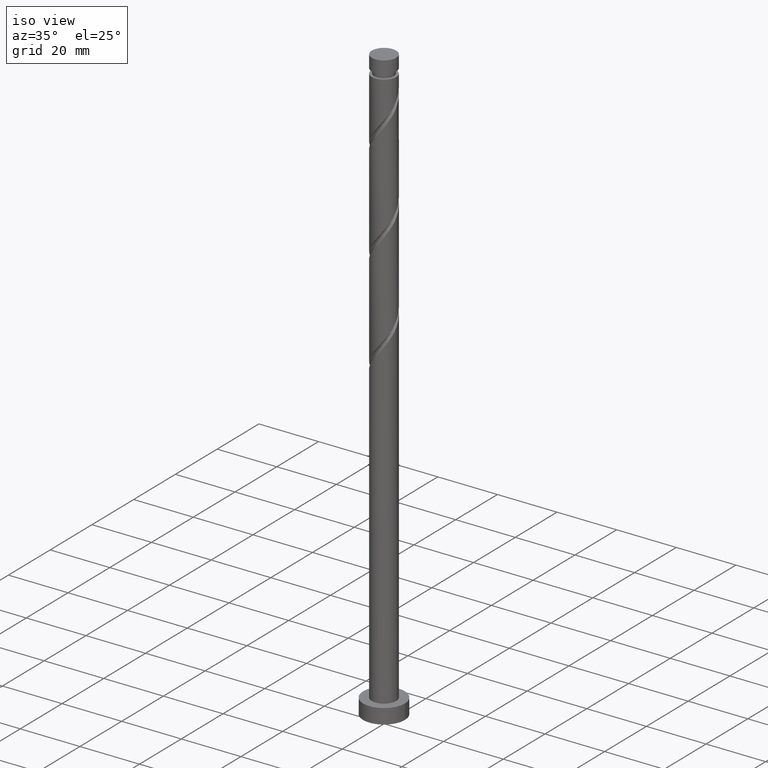
[diagram: clean part render]
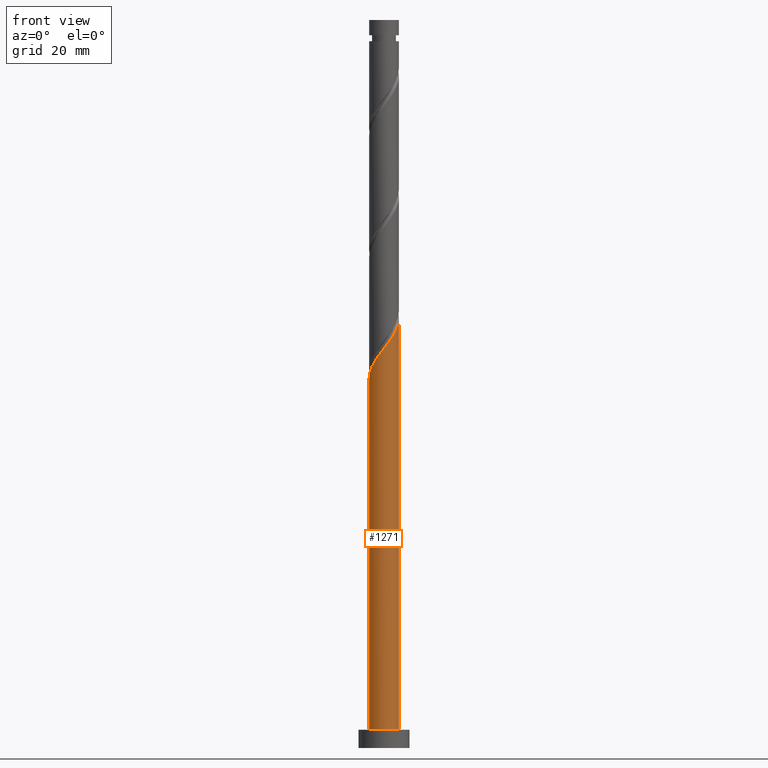
[diagram: tour spotlight — one face highlighted and labeled with its STEP entity id]
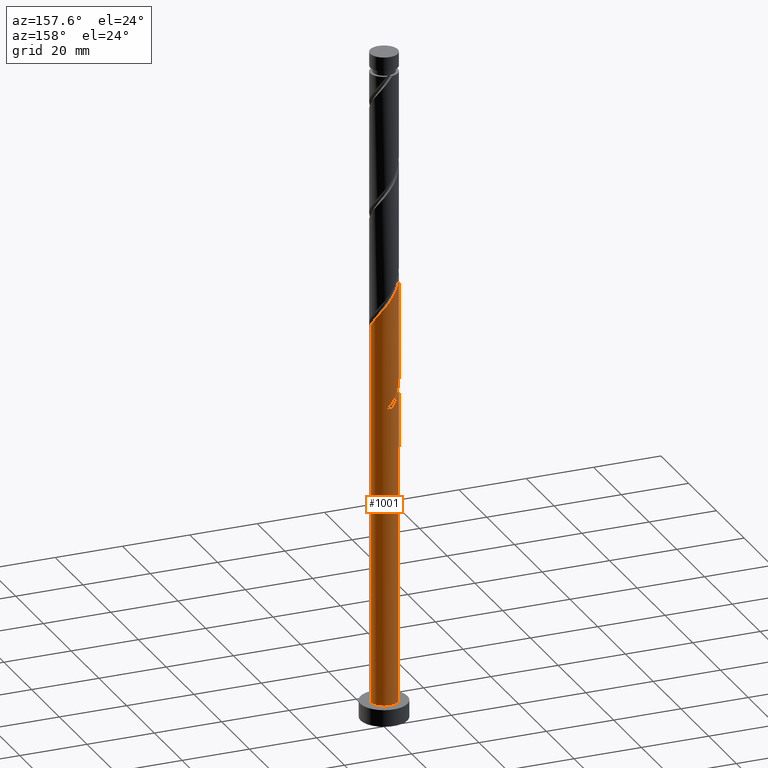
[diagram: tour spotlight — one face highlighted and labeled with its STEP entity id]
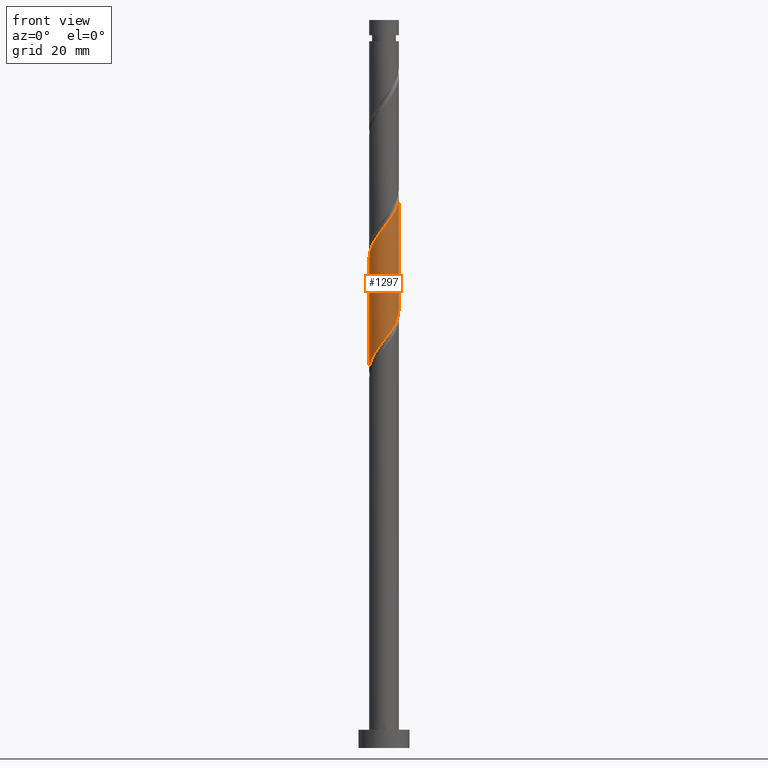
[diagram: tour spotlight — one face highlighted and labeled with its STEP entity id]
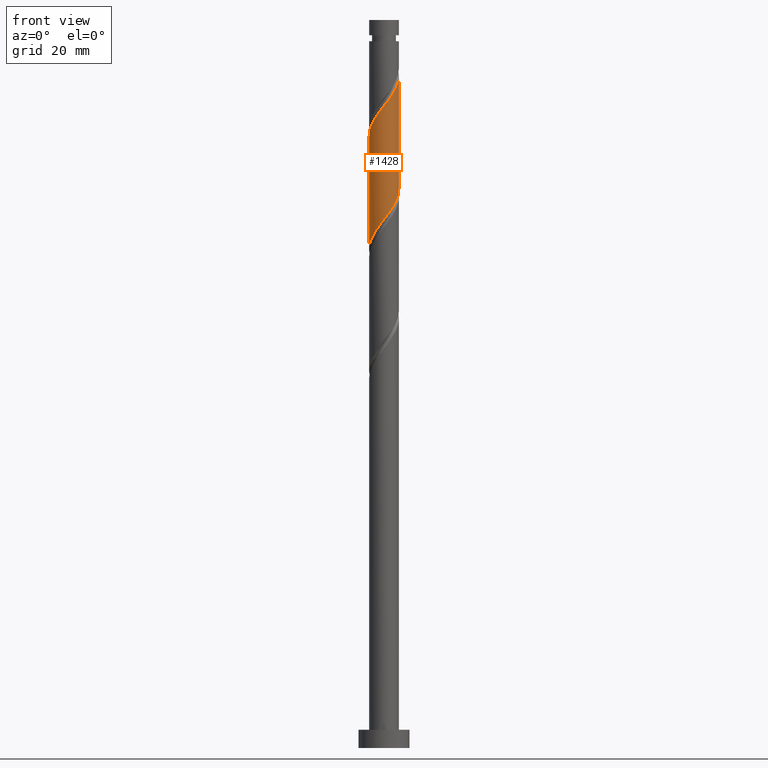
[diagram: tour spotlight — one face highlighted and labeled with its STEP entity id]
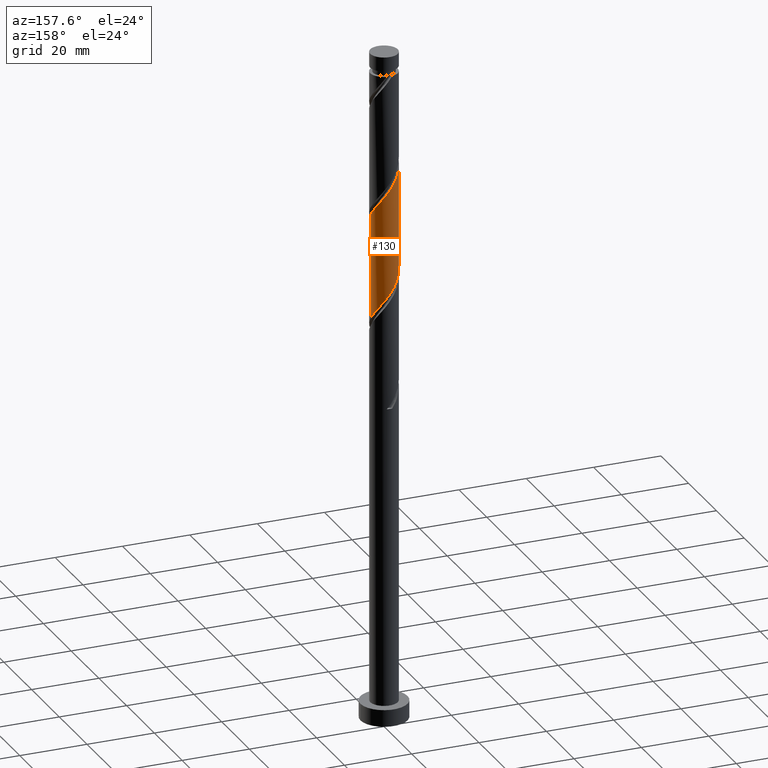
[diagram: tour spotlight — one face highlighted and labeled with its STEP entity id]
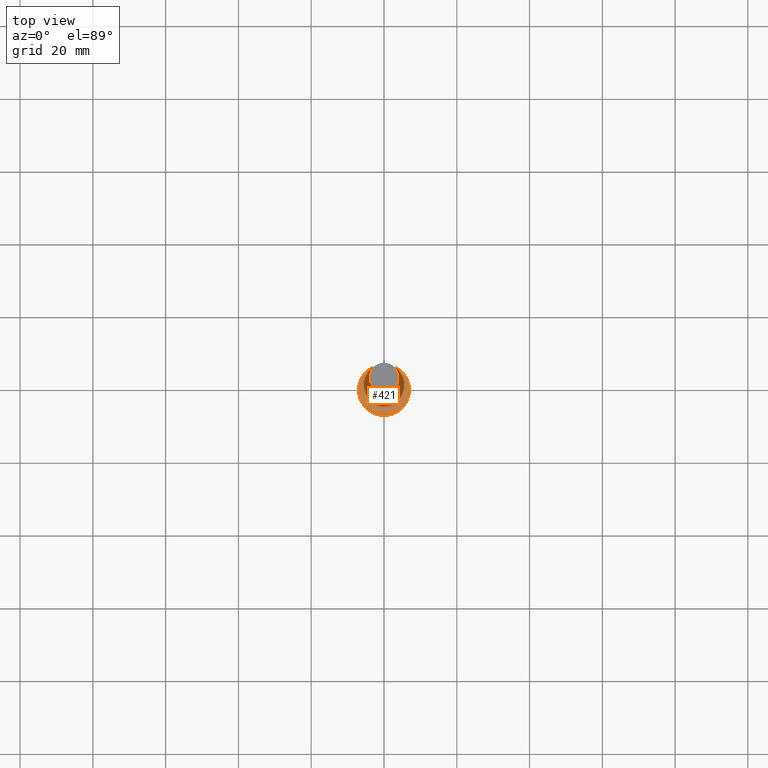
[diagram: tour spotlight — one face highlighted and labeled with its STEP entity id]
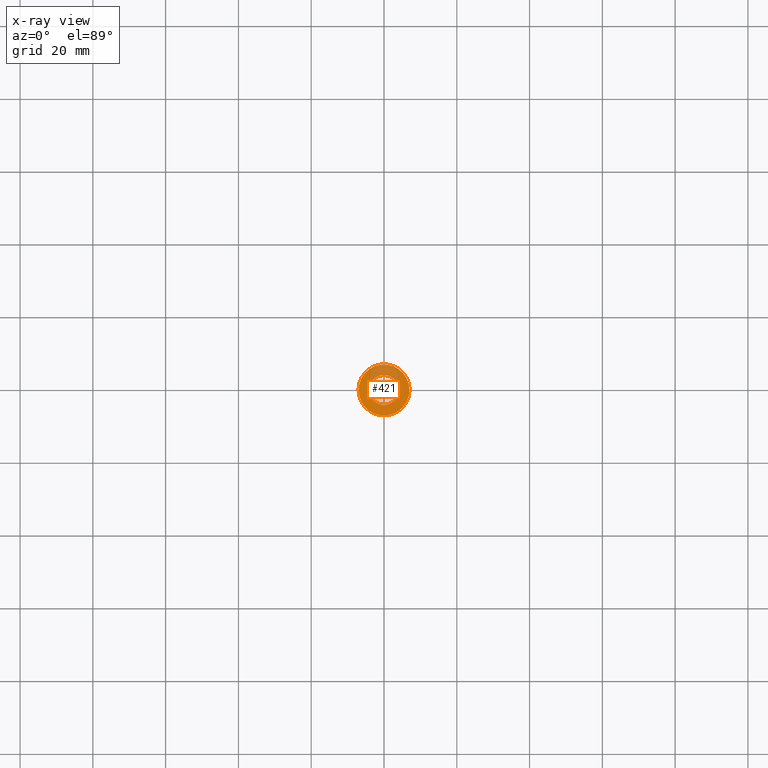
[diagram: x-ray of the same camera — body ghosted, this tour face saturated]
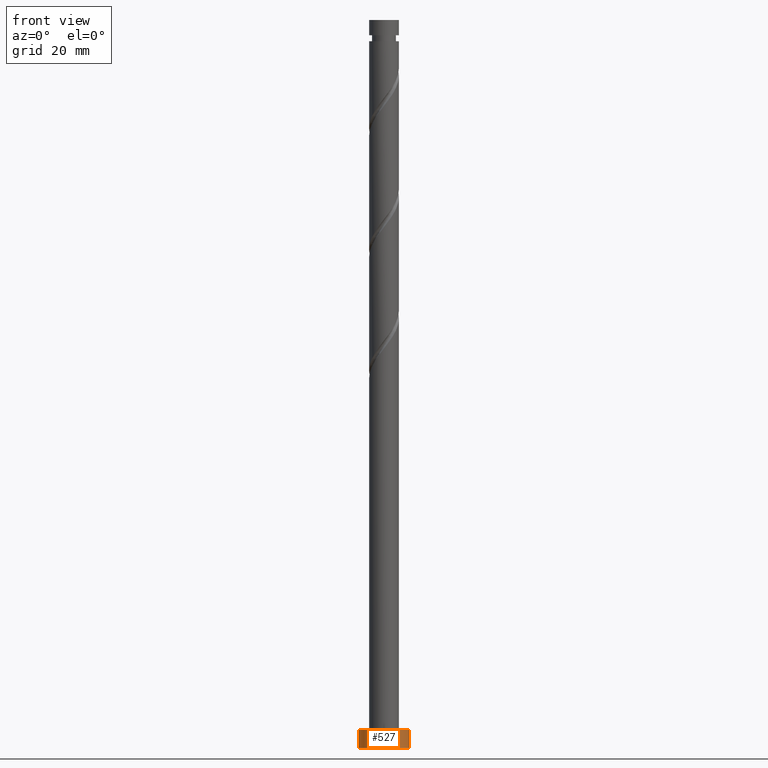
[diagram: tour spotlight — one face highlighted and labeled with its STEP entity id]
A machine part: a face-by-face anatomy tour. The part has 21 B-rep faces; the first image is the clean iso view, then the 7 largest visible faces are spotlighted one at a time (largest first), each with its STEP entity span.

Face 1 — front view, entity #1271. In plain terms, the highlighted cylindrical surface (edge-blend (fillet) strip) has radius 4.1 mm, axis along (-0, -0, -1).
Definition (entity closure, byte-faithful):
#46 = CARTESIAN_POINT ( 'NONE',  ( 1.828023854336181753, -3.669922177373511119, 112.2252327879894409 ) ) ;
#96 = CARTESIAN_POINT ( 'NONE',  ( -4.100000000000005862, -0.4120655042562741399, 101.9728702797464024 ) ) ;
#106 = VECTOR ( 'NONE', #817, 1000.000000000000000 ) ;
#111 = VERTEX_POINT ( 'NONE', #1447 ) ;
#167 = CARTESIAN_POINT ( 'NONE',  ( 4.092257762685451716, -0.2518459921076792174, 117.7807883435449980 ) ) ;
#175 = AXIS2_PLACEMENT_3D ( 'NONE', #1226, #408, #808 ) ;
#178 = CARTESIAN_POINT ( 'NONE',  ( -0.2518459921076771635, -4.092257762685452605, 109.4474550102116837 ) ) ;
#219 = CARTESIAN_POINT ( 'NONE',  ( -3.910586083446207173, -1.344869433733586028, 103.1974550102116694 ) ) ;
#237 = ORIENTED_EDGE ( 'NONE', *, *, #1057, .F. ) ;
#292 = CARTESIAN_POINT ( 'NONE',  ( 2.715581205524179698, -3.071745223192165586, 113.6141216768783266 ) ) ;
#342 = VERTEX_POINT ( 'NONE', #1412 ) ;
#355 = EDGE_LOOP ( 'NONE', ( #237, #795, #1749, #532 ) ) ;
#359 = CARTESIAN_POINT ( 'NONE',  ( -3.429258271300815064, -2.311178274938778809, 104.5863438991005836 ) ) ;
#408 = DIRECTION ( 'NONE',  ( 0.000000000000000000, 0.000000000000000000, 1.000000000000000000 ) ) ;
#416 = CARTESIAN_POINT ( 'NONE',  ( 4.099999999999999645, 5.021051876504147385E-16, 200.0000000000000000 ) ) ;
#434 = CARTESIAN_POINT ( 'NONE',  ( 2.311178274938777921, -3.429258271300815508, 112.9196772324338696 ) ) ;
#441 = CARTESIAN_POINT ( 'NONE',  ( -2.714232175083515664, -3.119984136109581030, 105.9752327879894693 ) ) ;
#444 = CARTESIAN_POINT ( 'NONE',  ( 0.000000000000000000, 0.000000000000000000, 200.0000000000000000 ) ) ;
#532 = ORIENTED_EDGE ( 'NONE', *, *, #1532, .T. ) ;
#537 = VECTOR ( 'NONE', #779, 1000.000000000000000 ) ;
#539 = AXIS2_PLACEMENT_3D ( 'NONE', #444, #936, #1370 ) ;
#549 = EDGE_CURVE ( 'NONE', #342, #111, #642, .T. ) ;
#554 = CARTESIAN_POINT ( 'NONE',  ( 4.059101608817101692, -0.7906019473366266981, 117.0863438991005694 ) ) ;
#642 = LINE ( 'NONE', #1609, #537 ) ;
#647 = CYLINDRICAL_SURFACE ( 'NONE', #539, 4.099999999999999645 ) ;
#657 = CIRCLE ( 'NONE', #175, 4.099999999999999645 ) ;
#680 = CARTESIAN_POINT ( 'NONE',  ( 4.100000000000004086, -0.1260420017964657136, 117.9429468891956390 ) ) ;
#689 = EDGE_CURVE ( 'NONE', #342, #951, #1051, .T. ) ;
#701 = CARTESIAN_POINT ( 'NONE',  ( 4.100000000000004974, -5.981513777448022401E-17, 118.1061105772238022 ) ) ;
#745 = CARTESIAN_POINT ( 'NONE',  ( 4.099999999999999645, 5.021051876504147385E-16, 5.000000000000000000 ) ) ;
#758 = CARTESIAN_POINT ( 'NONE',  ( -3.669922177373509786, -1.828023854336183085, 103.8918994546560981 ) ) ;
#779 = DIRECTION ( 'NONE',  ( -0.000000000000000000, -0.000000000000000000, -1.000000000000000000 ) ) ;
#795 = ORIENTED_EDGE ( 'NONE', *, *, #689, .F. ) ;
#799 = LINE ( 'NONE', #416, #106 ) ;
#808 = DIRECTION ( 'NONE',  ( 1.000000000000000000, 0.000000000000000000, 0.000000000000000000 ) ) ;
#817 = DIRECTION ( 'NONE',  ( -0.000000000000000000, -0.000000000000000000, -1.000000000000000000 ) ) ;
#831 = CARTESIAN_POINT ( 'NONE',  ( 3.418076185265833011, -2.264233908349270852, 115.0030105657672266 ) ) ;
#909 = FACE_OUTER_BOUND ( 'NONE', #355, .T. ) ;
#936 = DIRECTION ( 'NONE',  ( -0.000000000000000000, -0.000000000000000000, -1.000000000000000000 ) ) ;
#951 = VERTEX_POINT ( 'NONE', #1192 ) ;
#980 = CARTESIAN_POINT ( 'NONE',  ( 0.2869099631212708723, -4.125413916553802629, 110.1418994546560981 ) ) ;
#1051 =( BOUNDED_CURVE ( )  B_SPLINE_CURVE ( 2, ( #1572, #96, #1439, #219, #758, #359, #1325, #441, #1113, #1368, #1250, #1681, #178, #980, #1519, #1539, #46, #434, #292, #1355, #831, #1504, #1375, #554, #167, #680, #701 ),
 .UNSPECIFIED., .F., .T. ) 
 B_SPLINE_CURVE_WITH_KNOTS ( ( 3, 2, 2, 2, 2, 2, 2, 2, 2, 2, 2, 2, 2, 3 ),
 ( 0.05453176698144625995, 0.06250000000000000000, 0.07291666666666662966, 0.08333333333333337034, 0.09375000000000000000, 0.1041666666666666297, 0.1145833333333333703, 0.1250000000000000000, 0.1354166666666666297, 0.1458333333333333703, 0.1562500000000000000, 0.1666666666666666297, 0.1770833333333333703, 0.1795317669814462946 ),
 .UNSPECIFIED. ) 
 CURVE ( )  GEOMETRIC_REPRESENTATION_ITEM ( )  RATIONAL_B_SPLINE_CURVE ( ( 0.9062941362546463875, 0.9031415850403505807, 0.9090909090909261581, 0.9013135103398444148, 0.9090909090909261581, 0.9013135103398444148, 0.9090909090909261581, 0.9013135103398444148, 0.9090909090909261581, 0.9013135103398444148, 0.9090909090909261581, 0.9013135103398444148, 0.9090909090909261581, 0.9013135103398444148, 0.9090909090909261581, 0.9013135103398444148, 0.9090909090909261581, 0.9013135103398444148, 0.9090909090909261581, 0.9013135103398444148, 0.9090909090909261581, 0.9013135103398444148, 0.9090909090909261581, 0.9013135103398444148, 0.9090909090909261581, 0.9072628343904198811, 0.9062941362546463875 ) ) 
 REPRESENTATION_ITEM ( '' )  );
#1057 = EDGE_CURVE ( 'NONE', #951, #1114, #799, .T. ) ;
#1113 = CARTESIAN_POINT ( 'NONE',  ( -2.264233908349269520, -3.418076185265833900, 106.6696772324338980 ) ) ;
#1114 = VERTEX_POINT ( 'NONE', #745 ) ;
#1192 = CARTESIAN_POINT ( 'NONE',  ( 4.100000000000004974, -5.981513777448022401E-17, 118.1061105772238022 ) ) ;
#1226 = CARTESIAN_POINT ( 'NONE',  ( 0.000000000000000000, 0.000000000000000000, 5.000000000000000000 ) ) ;
#1250 = CARTESIAN_POINT ( 'NONE',  ( -1.302418794475824981, -3.887634921619593786, 108.0585661213228121 ) ) ;
#1271 = ADVANCED_FACE ( 'NONE', ( #909 ), #647, .T. ) ;
#1325 = CARTESIAN_POINT ( 'NONE',  ( -3.071745223192164698, -2.715581205524180586, 105.2807883435450123 ) ) ;
#1355 = CARTESIAN_POINT ( 'NONE',  ( 3.119984136109581030, -2.714232175083515664, 114.3085661213227695 ) ) ;
#1368 = CARTESIAN_POINT ( 'NONE',  ( -1.814235641615024042, -3.716168234422085881, 107.3641216768783408 ) ) ;
#1370 = DIRECTION ( 'NONE',  ( -1.000000000000000000, 0.000000000000000000, 0.000000000000000000 ) ) ;
#1375 = CARTESIAN_POINT ( 'NONE',  ( 3.887634921619593786, -1.302418794475825647, 116.3918994546560981 ) ) ;
#1412 = CARTESIAN_POINT ( 'NONE',  ( -4.100000000000004974, -2.437466864310068876E-15, 101.4394439105571593 ) ) ;
#1439 = CARTESIAN_POINT ( 'NONE',  ( -4.018000000000005123, -0.8158896984274294217, 102.5030105657672124 ) ) ;
#1447 = CARTESIAN_POINT ( 'NONE',  ( -4.099999999999999645, 0.000000000000000000, 5.000000000000000000 ) ) ;
#1504 = CARTESIAN_POINT ( 'NONE',  ( 3.716168234422085437, -1.814235641615024042, 115.6974550102116979 ) ) ;
#1519 = CARTESIAN_POINT ( 'NONE',  ( 0.8158896984274291997, -4.018000000000005123, 110.8363438991005694 ) ) ;
#1532 = EDGE_CURVE ( 'NONE', #111, #1114, #657, .T. ) ;
#1539 = CARTESIAN_POINT ( 'NONE',  ( 1.344869433733585806, -3.910586083446207173, 111.5307883435449838 ) ) ;
#1572 = CARTESIAN_POINT ( 'NONE',  ( -4.100000000000004974, -2.437466864310068876E-15, 101.4394439105571593 ) ) ;
#1609 = CARTESIAN_POINT ( 'NONE',  ( -4.099999999999999645, 0.000000000000000000, 200.0000000000000000 ) ) ;
#1681 = CARTESIAN_POINT ( 'NONE',  ( -0.7906019473366251438, -4.059101608817101692, 108.7530105657672124 ) ) ;
#1749 = ORIENTED_EDGE ( 'NONE', *, *, #549, .T. ) ;

Face 2 — auxiliary view, entity #1001. In plain terms, the highlighted cylindrical surface (edge-blend (fillet) strip) has radius 4.1 mm, axis along (-0, -0, -1).
Definition (entity closure, byte-faithful):
#36 = CARTESIAN_POINT ( 'NONE',  ( 0.2518459921076795505, 4.092257762685451716, 126.1141216768783266 ) ) ;
#59 = CARTESIAN_POINT ( 'NONE',  ( -2.311178274938780586, 3.429258271300814620, 129.5863438991005694 ) ) ;
#64 = EDGE_CURVE ( 'NONE', #490, #342, #928, .T. ) ;
#69 = CARTESIAN_POINT ( 'NONE',  ( -0.8158896984274288666, 4.018000000000005123, 127.5030105657672408 ) ) ;
#85 = CARTESIAN_POINT ( 'NONE',  ( -1.344869433733586916, 3.910586083446206285, 94.86412167687832664 ) ) ;
#91 = CARTESIAN_POINT ( 'NONE',  ( -1.828023854336183307, 3.669922177373509786, 128.8918994546561123 ) ) ;
#106 = VECTOR ( 'NONE', #817, 1000.000000000000000 ) ;
#111 = VERTEX_POINT ( 'NONE', #1447 ) ;
#138 = ORIENTED_EDGE ( 'NONE', *, *, #317, .F. ) ;
#156 = DIRECTION ( 'NONE',  ( 0.000000000000000000, -2.538619720941670789E-14, -1.000000000000000000 ) ) ;
#165 = CARTESIAN_POINT ( 'NONE',  ( 0.7906019473366270311, 4.059101608817101692, 125.4196772324339122 ) ) ;
#182 = CARTESIAN_POINT ( 'NONE',  ( -3.418076185265834788, 2.264233908349269075, 131.6696772324338838 ) ) ;
#184 = CARTESIAN_POINT ( 'NONE',  ( -2.715581205524180586, 3.071745223192164698, 96.94745501021165524 ) ) ;
#195 = CARTESIAN_POINT ( 'NONE',  ( -4.100000000000004974, -2.437466864310068876E-15, 134.7727772438904594 ) ) ;
#196 = VECTOR ( 'NONE', #787, 1000.000000000000000 ) ;
#223 = CARTESIAN_POINT ( 'NONE',  ( -4.099999999999999645, 0.000000000000000000, 200.0000000000000000 ) ) ;
#244 = FACE_OUTER_BOUND ( 'NONE', #1730, .T. ) ;
#245 = CARTESIAN_POINT ( 'NONE',  ( 0.8158896984274299768, 4.017999999999998906, 94.16967723243388377 ) ) ;
#252 = CYLINDRICAL_SURFACE ( 'NONE', #842, 4.099999999999999645 ) ;
#273 = CARTESIAN_POINT ( 'NONE',  ( 4.100000000000005862, 0.4120655042562733072, 118.6395369464130738 ) ) ;
#289 = CARTESIAN_POINT ( 'NONE',  ( -4.100000000000004974, -2.437466864310068876E-15, 134.7727772438904594 ) ) ;
#299 = VERTEX_POINT ( 'NONE', #289 ) ;
#305 = EDGE_CURVE ( 'NONE', #490, #1222, #1236, .T. ) ;
#317 = EDGE_CURVE ( 'NONE', #951, #299, #455, .T. ) ;
#342 = VERTEX_POINT ( 'NONE', #1412 ) ;
#416 = CARTESIAN_POINT ( 'NONE',  ( 4.099999999999999645, 5.021051876504147385E-16, 200.0000000000000000 ) ) ;
#430 = CARTESIAN_POINT ( 'NONE',  ( 2.714232175083516996, 3.119984136109579698, 122.6418994546560981 ) ) ;
#454 = CARTESIAN_POINT ( 'NONE',  ( -4.059101608817101692, 0.7906019473366249217, 133.7530105657672266 ) ) ;
#455 =( BOUNDED_CURVE ( )  B_SPLINE_CURVE ( 2, ( #1493, #273, #1353, #678, #956, #1511, #1366, #430, #1517, #1110, #693, #165, #36, #699, #69, #1265, #91, #59, #1129, #1556, #182, #471, #1137, #454, #1565, #976, #195 ),
 .UNSPECIFIED., .F., .T. ) 
 B_SPLINE_CURVE_WITH_KNOTS ( ( 3, 2, 2, 2, 2, 2, 2, 2, 2, 2, 2, 2, 2, 3 ),
 ( 0.1795317669814462946, 0.1875000000000000000, 0.1979166666666666297, 0.2083333333333333703, 0.2187500000000000000, 0.2291666666666666297, 0.2395833333333333703, 0.2500000000000000000, 0.2604166666666666297, 0.2708333333333333703, 0.2812500000000000000, 0.2916666666666666297, 0.3020833333333333703, 0.3045317669814462946 ),
 .UNSPECIFIED. ) 
 CURVE ( )  GEOMETRIC_REPRESENTATION_ITEM ( )  RATIONAL_B_SPLINE_CURVE ( ( 0.9062941362546463875, 0.9031415850403505807, 0.9090909090909261581, 0.9013135103398444148, 0.9090909090909261581, 0.9013135103398444148, 0.9090909090909261581, 0.9013135103398444148, 0.9090909090909261581, 0.9013135103398444148, 0.9090909090909261581, 0.9013135103398444148, 0.9090909090909261581, 0.9013135103398444148, 0.9090909090909261581, 0.9013135103398444148, 0.9090909090909261581, 0.9013135103398444148, 0.9090909090909261581, 0.9013135103398444148, 0.9090909090909261581, 0.9013135103398444148, 0.9090909090909261581, 0.9013135103398444148, 0.9090909090909261581, 0.9072628343904198811, 0.9062941362546463875 ) ) 
 REPRESENTATION_ITEM ( '' )  );
#461 = CARTESIAN_POINT ( 'NONE',  ( -4.099999999999998757, 0.4120655042562856307, 103.0331508517879939 ) ) ;
#471 = CARTESIAN_POINT ( 'NONE',  ( -3.716168234422086325, 1.814235641615023154, 132.3641216768783124 ) ) ;
#474 = EDGE_CURVE ( 'NONE', #299, #1376, #1442, .T. ) ;
#475 = CARTESIAN_POINT ( 'NONE',  ( -3.716168234422086325, 1.814235641615023154, 99.03078834354502646 ) ) ;
#490 = VERTEX_POINT ( 'NONE', #763 ) ;
#531 = CARTESIAN_POINT ( 'NONE',  ( -4.099999999999999645, 4.441273979755184668E-15, 103.5665772209772655 ) ) ;
#537 = VECTOR ( 'NONE', #779, 1000.000000000000000 ) ;
#549 = EDGE_CURVE ( 'NONE', #342, #111, #642, .T. ) ;
#561 = DIRECTION ( 'NONE',  ( 0.000000000000000000, 1.000000000000000000, -2.707861035671113867E-14 ) ) ;
#567 =( BOUNDED_CURVE ( )  B_SPLINE_CURVE ( 2, ( #531, #461, #998, #1563, #752, #1553, #1410, #653, #754, #1617, #762, #1306, #1205, #893, #1175 ),
 .UNSPECIFIED., .F., .T. ) 
 B_SPLINE_CURVE_WITH_KNOTS ( ( 3, 2, 2, 2, 2, 2, 2, 3 ),
 ( 0.9295317669814464612, 0.9375000000000000000, 0.9479166666666666297, 0.9583333333333333703, 0.9687500000000000000, 0.9791666666666666297, 0.9895833333333333703, 1.000000000000000000 ),
 .UNSPECIFIED. ) 
 CURVE ( )  GEOMETRIC_REPRESENTATION_ITEM ( )  RATIONAL_B_SPLINE_CURVE ( ( 0.9062941362546403923, 0.9031415850403450296, 0.9090909090909202739, 0.9013135103398387526, 0.9090909090909202739, 0.9013135103398387526, 0.9090909090909202739, 0.9013135103398387526, 0.9090909090909202739, 0.9013135103398387526, 0.9090909090909202739, 0.9013135103398387526, 0.9090909090909202739, 0.9013135103398387526, 0.9090909090909202739 ) ) 
 REPRESENTATION_ITEM ( '' )  );
#572 = ORIENTED_EDGE ( 'NONE', *, *, #1042, .T. ) ;
#604 = CARTESIAN_POINT ( 'NONE',  ( -1.828023854336183307, 3.669922177373509786, 95.55856612132275529 ) ) ;
#642 = LINE ( 'NONE', #1609, #537 ) ;
#653 = CARTESIAN_POINT ( 'NONE',  ( -2.714232175083510779, 3.119984136109578365, 99.03078834354499804 ) ) ;
#655 = CIRCLE ( 'NONE', #1358, 4.099999999999999645 ) ;
#678 = CARTESIAN_POINT ( 'NONE',  ( 3.910586083446207173, 1.344869433733585584, 119.8641216768783266 ) ) ;
#693 = CARTESIAN_POINT ( 'NONE',  ( 1.302418794475825647, 3.887634921619593786, 124.7252327879894409 ) ) ;
#699 = CARTESIAN_POINT ( 'NONE',  ( -0.2869099631212681523, 4.125413916553802629, 126.8085661213227979 ) ) ;
#737 = CARTESIAN_POINT ( 'NONE',  ( -0.8158896984274286446, 4.018000000000005123, 94.16967723243388377 ) ) ;
#745 = CARTESIAN_POINT ( 'NONE',  ( 4.099999999999999645, 5.021051876504147385E-16, 5.000000000000000000 ) ) ;
#752 = CARTESIAN_POINT ( 'NONE',  ( -3.669922177373505345, 1.828023854336181975, 101.1141216768783408 ) ) ;
#754 = CARTESIAN_POINT ( 'NONE',  ( -2.264233908349265523, 3.418076185265830347, 98.33634389910058360 ) ) ;
#762 = CARTESIAN_POINT ( 'NONE',  ( -1.302418794475821207, 3.887634921619589345, 96.94745501021168366 ) ) ;
#763 = CARTESIAN_POINT ( 'NONE',  ( -0.8158896984274286446, 4.018000000000005123, 94.16967723243388377 ) ) ;
#770 = AXIS2_PLACEMENT_3D ( 'NONE', #1085, #156, #561 ) ;
#777 = CARTESIAN_POINT ( 'NONE',  ( 0.000000000000000000, 0.000000000000000000, 200.0000000000000000 ) ) ;
#779 = DIRECTION ( 'NONE',  ( -0.000000000000000000, -0.000000000000000000, -1.000000000000000000 ) ) ;
#787 = DIRECTION ( 'NONE',  ( -0.000000000000000000, -0.000000000000000000, -1.000000000000000000 ) ) ;
#792 = DIRECTION ( 'NONE',  ( -1.000000000000000000, 0.000000000000000000, 0.000000000000000000 ) ) ;
#799 = LINE ( 'NONE', #416, #106 ) ;
#817 = DIRECTION ( 'NONE',  ( -0.000000000000000000, -0.000000000000000000, -1.000000000000000000 ) ) ;
#842 = AXIS2_PLACEMENT_3D ( 'NONE', #777, #1744, #792 ) ;
#893 = CARTESIAN_POINT ( 'NONE',  ( 0.2869099631212727042, 4.125413916553799076, 94.86412167687831243 ) ) ;
#922 = CARTESIAN_POINT ( 'NONE',  ( -4.092257762685452605, 0.2518459921076769414, 101.1141216768783408 ) ) ;
#928 =( BOUNDED_CURVE ( )  B_SPLINE_CURVE ( 2, ( #737, #85, #604, #1160, #184, #1704, #1680, #475, #1568, #1069, #922, #1038, #1048 ),
 .UNSPECIFIED., .F., .T. ) 
 B_SPLINE_CURVE_WITH_KNOTS ( ( 3, 2, 2, 2, 2, 2, 3 ),
 ( 0.000000000000000000, 0.01041666666666662966, 0.02083333333333337034, 0.03125000000000000000, 0.04166666666666662966, 0.05208333333333337034, 0.05453176698144625995 ),
 .UNSPECIFIED. ) 
 CURVE ( )  GEOMETRIC_REPRESENTATION_ITEM ( )  RATIONAL_B_SPLINE_CURVE ( ( 0.9090909090909261581, 0.9013135103398444148, 0.9090909090909261581, 0.9013135103398444148, 0.9090909090909261581, 0.9013135103398444148, 0.9090909090909261581, 0.9013135103398444148, 0.9090909090909261581, 0.9013135103398444148, 0.9090909090909261581, 0.9072628343904198811, 0.9062941362546463875 ) ) 
 REPRESENTATION_ITEM ( '' )  );
#945 = CARTESIAN_POINT ( 'NONE',  ( -4.099999999999999645, 4.441273979755184668E-15, 103.5665772209772655 ) ) ;
#951 = VERTEX_POINT ( 'NONE', #1192 ) ;
#956 = CARTESIAN_POINT ( 'NONE',  ( 3.669922177373511119, 1.828023854336181753, 120.5585661213227695 ) ) ;
#976 = CARTESIAN_POINT ( 'NONE',  ( -4.100000000000005862, 0.1260420017964631878, 134.6096135558623246 ) ) ;
#982 = ORIENTED_EDGE ( 'NONE', *, *, #549, .F. ) ;
#998 = CARTESIAN_POINT ( 'NONE',  ( -4.017999999999999794, 0.8158896984274290887, 102.5030105657672266 ) ) ;
#1001 = ADVANCED_FACE ( 'NONE', ( #244 ), #252, .T. ) ;
#1026 = ORIENTED_EDGE ( 'NONE', *, *, #305, .T. ) ;
#1038 = CARTESIAN_POINT ( 'NONE',  ( -4.100000000000005862, 0.1260420017964649919, 101.2762802225290102 ) ) ;
#1042 = EDGE_CURVE ( 'NONE', #1114, #111, #655, .T. ) ;
#1048 = CARTESIAN_POINT ( 'NONE',  ( -4.100000000000004974, -2.437466864310068876E-15, 101.4394439105571593 ) ) ;
#1057 = EDGE_CURVE ( 'NONE', #951, #1114, #799, .T. ) ;
#1069 = CARTESIAN_POINT ( 'NONE',  ( -4.059101608817101692, 0.7906019473366249217, 100.4196772324338554 ) ) ;
#1085 = CARTESIAN_POINT ( 'NONE',  ( 0.000000000000000000, 0.000000000000000000, 94.16967723243399746 ) ) ;
#1110 = CARTESIAN_POINT ( 'NONE',  ( 1.814235641615024486, 3.716168234422085437, 124.0307883435450123 ) ) ;
#1114 = VERTEX_POINT ( 'NONE', #745 ) ;
#1124 = ORIENTED_EDGE ( 'NONE', *, *, #1570, .F. ) ;
#1129 = CARTESIAN_POINT ( 'NONE',  ( -2.715581205524180586, 3.071745223192164698, 130.2807883435449696 ) ) ;
#1137 = CARTESIAN_POINT ( 'NONE',  ( -3.887634921619594675, 1.302418794475824315, 133.0585661213227695 ) ) ;
#1160 = CARTESIAN_POINT ( 'NONE',  ( -2.311178274938780586, 3.429258271300814620, 96.25301056576722658 ) ) ;
#1175 = CARTESIAN_POINT ( 'NONE',  ( 0.8158896984274299768, 4.017999999999998906, 94.16967723243388377 ) ) ;
#1188 = ORIENTED_EDGE ( 'NONE', *, *, #1057, .T. ) ;
#1192 = CARTESIAN_POINT ( 'NONE',  ( 4.100000000000004974, -5.981513777448022401E-17, 118.1061105772238022 ) ) ;
#1205 = CARTESIAN_POINT ( 'NONE',  ( -0.2518459921076751096, 4.092257762685445499, 95.55856612132276950 ) ) ;
#1222 = VERTEX_POINT ( 'NONE', #245 ) ;
#1236 = CIRCLE ( 'NONE', #770, 4.099999999999999645 ) ;
#1265 = CARTESIAN_POINT ( 'NONE',  ( -1.344869433733586916, 3.910586083446206285, 128.1974550102116837 ) ) ;
#1268 = DIRECTION ( 'NONE',  ( 0.000000000000000000, 0.000000000000000000, 1.000000000000000000 ) ) ;
#1284 = DIRECTION ( 'NONE',  ( 1.000000000000000000, 0.000000000000000000, 0.000000000000000000 ) ) ;
#1306 = CARTESIAN_POINT ( 'NONE',  ( -0.7906019473366230343, 4.059101608817096363, 96.25301056576721237 ) ) ;
#1353 = CARTESIAN_POINT ( 'NONE',  ( 4.018000000000005123, 0.8158896984274288666, 119.1696772324338980 ) ) ;
#1358 = AXIS2_PLACEMENT_3D ( 'NONE', #1657, #1268, #1284 ) ;
#1366 = CARTESIAN_POINT ( 'NONE',  ( 3.071745223192166030, 2.715581205524178809, 121.9474550102116552 ) ) ;
#1376 = VERTEX_POINT ( 'NONE', #945 ) ;
#1410 = CARTESIAN_POINT ( 'NONE',  ( -3.071745223192159369, 2.715581205524178365, 99.72523278798946933 ) ) ;
#1412 = CARTESIAN_POINT ( 'NONE',  ( -4.100000000000004974, -2.437466864310068876E-15, 101.4394439105571593 ) ) ;
#1442 = LINE ( 'NONE', #223, #196 ) ;
#1447 = CARTESIAN_POINT ( 'NONE',  ( -4.099999999999999645, 0.000000000000000000, 5.000000000000000000 ) ) ;
#1493 = CARTESIAN_POINT ( 'NONE',  ( 4.100000000000004974, -5.981513777448022401E-17, 118.1061105772238022 ) ) ;
#1511 = CARTESIAN_POINT ( 'NONE',  ( 3.429258271300815508, 2.311178274938777921, 121.2530105657671982 ) ) ;
#1517 = CARTESIAN_POINT ( 'NONE',  ( 2.264233908349269520, 3.418076185265833900, 123.3363438991005410 ) ) ;
#1553 = CARTESIAN_POINT ( 'NONE',  ( -3.429258271300809291, 2.311178274938777921, 100.4196772324338554 ) ) ;
#1556 = CARTESIAN_POINT ( 'NONE',  ( -3.119984136109581918, 2.714232175083513887, 130.9752327879894551 ) ) ;
#1563 = CARTESIAN_POINT ( 'NONE',  ( -3.910586083446200956, 1.344869433733586028, 101.8085661213227837 ) ) ;
#1565 = CARTESIAN_POINT ( 'NONE',  ( -4.092257762685452605, 0.2518459921076769414, 134.4474550102116552 ) ) ;
#1568 = CARTESIAN_POINT ( 'NONE',  ( -3.887634921619594675, 1.302418794475824315, 99.72523278798944091 ) ) ;
#1570 = EDGE_CURVE ( 'NONE', #1376, #1222, #567, .T. ) ;
#1609 = CARTESIAN_POINT ( 'NONE',  ( -4.099999999999999645, 0.000000000000000000, 200.0000000000000000 ) ) ;
#1617 = CARTESIAN_POINT ( 'NONE',  ( -1.814235641615019823, 3.716168234422080996, 97.64189945465609810 ) ) ;
#1657 = CARTESIAN_POINT ( 'NONE',  ( 0.000000000000000000, 0.000000000000000000, 5.000000000000000000 ) ) ;
#1680 = CARTESIAN_POINT ( 'NONE',  ( -3.418076185265834788, 2.264233908349269075, 98.33634389910054097 ) ) ;
#1700 = ORIENTED_EDGE ( 'NONE', *, *, #474, .F. ) ;
#1704 = CARTESIAN_POINT ( 'NONE',  ( -3.119984136109581918, 2.714232175083513887, 97.64189945465611231 ) ) ;
#1730 = EDGE_LOOP ( 'NONE', ( #138, #1188, #572, #982, #1738, #1026, #1124, #1700 ) ) ;
#1738 = ORIENTED_EDGE ( 'NONE', *, *, #64, .F. ) ;
#1744 = DIRECTION ( 'NONE',  ( -0.000000000000000000, -0.000000000000000000, -1.000000000000000000 ) ) ;

Face 3 — front view, entity #1297. In plain terms, the highlighted cylindrical surface (edge-blend (fillet) strip) has radius 4.1 mm, axis along (-0, -0, -1).
Definition (entity closure, byte-faithful):
#3 = CARTESIAN_POINT ( 'NONE',  ( 4.100000000000004974, -5.981513777448022401E-17, 151.4394439105572019 ) ) ;
#79 = CARTESIAN_POINT ( 'NONE',  ( 2.311178274938777921, -3.429258271300815508, 146.2530105657671982 ) ) ;
#81 = CARTESIAN_POINT ( 'NONE',  ( 0.7906019473366207029, -4.059101608817097251, 112.9196772324338838 ) ) ;
#97 = CARTESIAN_POINT ( 'NONE',  ( -3.910586083446207173, -1.344869433733586028, 136.5307883435449696 ) ) ;
#98 = CARTESIAN_POINT ( 'NONE',  ( -4.092257762685445499, -0.2518459921076746100, 103.8918994546561123 ) ) ;
#108 = CARTESIAN_POINT ( 'NONE',  ( -1.302418794475824981, -3.887634921619593786, 141.3918994546561123 ) ) ;
#136 = CYLINDRICAL_SURFACE ( 'NONE', #1662, 4.099999999999999645 ) ;
#168 = EDGE_LOOP ( 'NONE', ( #285, #186, #1393, #586 ) ) ;
#186 = ORIENTED_EDGE ( 'NONE', *, *, #1623, .F. ) ;
#196 = VECTOR ( 'NONE', #787, 1000.000000000000000 ) ;
#204 = CARTESIAN_POINT ( 'NONE',  ( 3.910586083446199179, -1.344869433733588915, 118.4752327879894551 ) ) ;
#223 = CARTESIAN_POINT ( 'NONE',  ( -4.099999999999999645, 0.000000000000000000, 200.0000000000000000 ) ) ;
#230 = CARTESIAN_POINT ( 'NONE',  ( -0.2518459921076771635, -4.092257762685452605, 142.7807883435449980 ) ) ;
#285 = ORIENTED_EDGE ( 'NONE', *, *, #1444, .F. ) ;
#289 = CARTESIAN_POINT ( 'NONE',  ( -4.100000000000004974, -2.437466864310068876E-15, 134.7727772438904594 ) ) ;
#299 = VERTEX_POINT ( 'NONE', #289 ) ;
#316 = CARTESIAN_POINT ( 'NONE',  ( 4.100000000000004974, -5.981513777448022401E-17, 151.4394439105572019 ) ) ;
#331 = CARTESIAN_POINT ( 'NONE',  ( -4.100000000000005862, -0.4120655042562759163, 135.3062036130797594 ) ) ;
#337 = VECTOR ( 'NONE', #593, 1000.000000000000000 ) ;
#338 = VERTEX_POINT ( 'NONE', #316 ) ;
#345 = CARTESIAN_POINT ( 'NONE',  ( -3.119984136109578809, -2.714232175083510334, 107.3641216768783408 ) ) ;
#391 = CARTESIAN_POINT ( 'NONE',  ( 3.716168234422085437, -1.814235641615024042, 149.0307883435449980 ) ) ;
#459 = CARTESIAN_POINT ( 'NONE',  ( -2.714232175083515664, -3.119984136109581030, 139.3085661213227695 ) ) ;
#460 = CARTESIAN_POINT ( 'NONE',  ( -3.716168234422080996, -1.814235641615018935, 105.9752327879894551 ) ) ;
#474 = EDGE_CURVE ( 'NONE', #299, #1376, #1442, .T. ) ;
#495 = CARTESIAN_POINT ( 'NONE',  ( 0.8158896984274291997, -4.018000000000005123, 144.1696772324339122 ) ) ;
#496 = CARTESIAN_POINT ( 'NONE',  ( 2.714232175083509890, -3.119984136109578809, 115.6974550102116979 ) ) ;
#586 = ORIENTED_EDGE ( 'NONE', *, *, #784, .F. ) ;
#593 = DIRECTION ( 'NONE',  ( -0.000000000000000000, -0.000000000000000000, -1.000000000000000000 ) ) ;
#608 = CARTESIAN_POINT ( 'NONE',  ( -1.828023854336182419, -3.669922177373505345, 109.4474550102116837 ) ) ;
#613 = CARTESIAN_POINT ( 'NONE',  ( 3.071745223192158480, -2.715581205524179698, 116.3918994546561123 ) ) ;
#618 = CARTESIAN_POINT ( 'NONE',  ( -3.429258271300815064, -2.311178274938778809, 137.9196772324339122 ) ) ;
#619 = CARTESIAN_POINT ( 'NONE',  ( -4.100000000000000533, -0.1260420017964524186, 103.7297409090054430 ) ) ;
#628 = CARTESIAN_POINT ( 'NONE',  ( 0.2518459921076732222, -4.092257762685446387, 112.2252327879894409 ) ) ;
#658 = CARTESIAN_POINT ( 'NONE',  ( 4.092257762685451716, -0.2518459921076792174, 151.1141216768783693 ) ) ;
#672 = CARTESIAN_POINT ( 'NONE',  ( 3.418076185265833011, -2.264233908349270852, 148.3363438991005125 ) ) ;
#695 = DIRECTION ( 'NONE',  ( -0.000000000000000000, -0.000000000000000000, -1.000000000000000000 ) ) ;
#739 = CARTESIAN_POINT ( 'NONE',  ( -4.018000000000005123, -0.8158896984274294217, 135.8363438991005410 ) ) ;
#742 = CARTESIAN_POINT ( 'NONE',  ( -0.8158896984274295328, -4.017999999999999794, 110.8363438991005410 ) ) ;
#751 = CARTESIAN_POINT ( 'NONE',  ( -0.2869099631212738699, -4.125413916553799965, 111.5307883435449980 ) ) ;
#766 = CARTESIAN_POINT ( 'NONE',  ( 1.344869433733585806, -3.910586083446207173, 144.8641216768783693 ) ) ;
#784 = EDGE_CURVE ( 'NONE', #966, #1376, #860, .T. ) ;
#787 = DIRECTION ( 'NONE',  ( -0.000000000000000000, -0.000000000000000000, -1.000000000000000000 ) ) ;
#793 = FACE_OUTER_BOUND ( 'NONE', #168, .T. ) ;
#830 = CARTESIAN_POINT ( 'NONE',  ( 3.119984136109581030, -2.714232175083515664, 147.6418994546561123 ) ) ;
#860 =( BOUNDED_CURVE ( )  B_SPLINE_CURVE ( 2, ( #989, #1164, #1710, #204, #1298, #1547, #613, #496, #1295, #1421, #1031, #81, #628, #751, #742, #1287, #608, #1018, #1574, #345, #883, #460, #890, #1429, #98, #619, #1726 ),
 .UNSPECIFIED., .F., .T. ) 
 B_SPLINE_CURVE_WITH_KNOTS ( ( 3, 2, 2, 2, 2, 2, 2, 2, 2, 2, 2, 2, 2, 3 ),
 ( 0.8045317669814462391, 0.8125000000000000000, 0.8229166666666666297, 0.8333333333333333703, 0.8437500000000000000, 0.8541666666666666297, 0.8645833333333333703, 0.8750000000000000000, 0.8854166666666666297, 0.8958333333333333703, 0.9062500000000000000, 0.9166666666666666297, 0.9270833333333333703, 0.9295317669814464612 ),
 .UNSPECIFIED. ) 
 CURVE ( )  GEOMETRIC_REPRESENTATION_ITEM ( )  RATIONAL_B_SPLINE_CURVE ( ( 0.9062941362546407253, 0.9031415850403448076, 0.9090909090909202739, 0.9013135103398387526, 0.9090909090909202739, 0.9013135103398387526, 0.9090909090909202739, 0.9013135103398387526, 0.9090909090909202739, 0.9013135103398387526, 0.9090909090909202739, 0.9013135103398387526, 0.9090909090909202739, 0.9013135103398387526, 0.9090909090909202739, 0.9013135103398387526, 0.9090909090909202739, 0.9013135103398387526, 0.9090909090909202739, 0.9013135103398387526, 0.9090909090909202739, 0.9013135103398387526, 0.9090909090909202739, 0.9013135103398387526, 0.9090909090909202739, 0.9072628343904138859, 0.9062941362546403923 ) ) 
 REPRESENTATION_ITEM ( '' )  );
#883 = CARTESIAN_POINT ( 'NONE',  ( -3.418076185265829903, -2.264233908349265523, 106.6696772324338838 ) ) ;
#890 = CARTESIAN_POINT ( 'NONE',  ( -3.887634921619589345, -1.302418794475820762, 105.2807883435450123 ) ) ;
#898 = CARTESIAN_POINT ( 'NONE',  ( -2.264233908349269520, -3.418076185265833900, 140.0030105657672266 ) ) ;
#945 = CARTESIAN_POINT ( 'NONE',  ( -4.099999999999999645, 4.441273979755184668E-15, 103.5665772209772655 ) ) ;
#966 = VERTEX_POINT ( 'NONE', #1201 ) ;
#989 = CARTESIAN_POINT ( 'NONE',  ( 4.099999999999999645, 5.876837286342717736E-15, 120.2332438876439511 ) ) ;
#997 = CARTESIAN_POINT ( 'NONE',  ( 1.828023854336181753, -3.669922177373511119, 145.5585661213227695 ) ) ;
#1018 = CARTESIAN_POINT ( 'NONE',  ( -2.311178274938777921, -3.429258271300809291, 108.7530105657672266 ) ) ;
#1024 = LINE ( 'NONE', #1580, #337 ) ;
#1031 = CARTESIAN_POINT ( 'NONE',  ( 1.302418794475820096, -3.887634921619589345, 113.6141216768783266 ) ) ;
#1061 = CARTESIAN_POINT ( 'NONE',  ( 4.059101608817101692, -0.7906019473366266981, 150.4196772324338269 ) ) ;
#1078 = CARTESIAN_POINT ( 'NONE',  ( 4.100000000000004086, -0.1260420017964628270, 151.2762802225290670 ) ) ;
#1087 = CARTESIAN_POINT ( 'NONE',  ( 3.887634921619593786, -1.302418794475825647, 149.7252327879894267 ) ) ;
#1090 = DIRECTION ( 'NONE',  ( -1.000000000000000000, 0.000000000000000000, 0.000000000000000000 ) ) ;
#1117 = CARTESIAN_POINT ( 'NONE',  ( 0.000000000000000000, 0.000000000000000000, 200.0000000000000000 ) ) ;
#1145 = CARTESIAN_POINT ( 'NONE',  ( -0.7906019473366251438, -4.059101608817101692, 142.0863438991005410 ) ) ;
#1164 = CARTESIAN_POINT ( 'NONE',  ( 4.100000000000002309, -0.4120655042562748060, 119.6998175184546938 ) ) ;
#1171 = CARTESIAN_POINT ( 'NONE',  ( -3.669922177373509786, -1.828023854336183085, 137.2252327879894551 ) ) ;
#1201 = CARTESIAN_POINT ( 'NONE',  ( 4.099999999999999645, 5.876837286342717736E-15, 120.2332438876439511 ) ) ;
#1253 =( BOUNDED_CURVE ( )  B_SPLINE_CURVE ( 2, ( #1408, #331, #739, #97, #1171, #618, #1717, #459, #898, #1285, #108, #1145, #230, #1724, #495, #766, #997, #79, #1552, #830, #672, #391, #1087, #1061, #658, #1078, #3 ),
 .UNSPECIFIED., .F., .T. ) 
 B_SPLINE_CURVE_WITH_KNOTS ( ( 3, 2, 2, 2, 2, 2, 2, 2, 2, 2, 2, 2, 2, 3 ),
 ( 0.3045317669814462946, 0.3125000000000000000, 0.3229166666666666297, 0.3333333333333333703, 0.3437500000000000000, 0.3541666666666666297, 0.3645833333333333703, 0.3750000000000000000, 0.3854166666666666297, 0.3958333333333333703, 0.4062500000000000000, 0.4166666666666666297, 0.4270833333333333703, 0.4295317669814463502 ),
 .UNSPECIFIED. ) 
 CURVE ( )  GEOMETRIC_REPRESENTATION_ITEM ( )  RATIONAL_B_SPLINE_CURVE ( ( 0.9062941362546463875, 0.9031415850403505807, 0.9090909090909261581, 0.9013135103398444148, 0.9090909090909261581, 0.9013135103398444148, 0.9090909090909261581, 0.9013135103398444148, 0.9090909090909261581, 0.9013135103398444148, 0.9090909090909261581, 0.9013135103398444148, 0.9090909090909261581, 0.9013135103398444148, 0.9090909090909261581, 0.9013135103398444148, 0.9090909090909261581, 0.9013135103398444148, 0.9090909090909261581, 0.9013135103398444148, 0.9090909090909261581, 0.9013135103398444148, 0.9090909090909261581, 0.9013135103398444148, 0.9090909090909261581, 0.9072628343904198811, 0.9062941362546463875 ) ) 
 REPRESENTATION_ITEM ( '' )  );
#1285 = CARTESIAN_POINT ( 'NONE',  ( -1.814235641615024042, -3.716168234422085881, 140.6974550102115984 ) ) ;
#1287 = CARTESIAN_POINT ( 'NONE',  ( -1.344869433733587361, -3.910586083446200956, 110.1418994546561407 ) ) ;
#1295 = CARTESIAN_POINT ( 'NONE',  ( 2.264233908349262858, -3.418076185265831679, 115.0030105657672266 ) ) ;
#1297 = ADVANCED_FACE ( 'NONE', ( #793 ), #136, .T. ) ;
#1298 = CARTESIAN_POINT ( 'NONE',  ( 3.669922177373503569, -1.828023854336184195, 117.7807883435449980 ) ) ;
#1376 = VERTEX_POINT ( 'NONE', #945 ) ;
#1393 = ORIENTED_EDGE ( 'NONE', *, *, #474, .T. ) ;
#1408 = CARTESIAN_POINT ( 'NONE',  ( -4.100000000000004974, -2.437466864310068876E-15, 134.7727772438904594 ) ) ;
#1421 = CARTESIAN_POINT ( 'NONE',  ( 1.814235641615018935, -3.716168234422080996, 114.3085661213227695 ) ) ;
#1429 = CARTESIAN_POINT ( 'NONE',  ( -4.059101608817096363, -0.7906019473366217021, 104.5863438991005694 ) ) ;
#1442 = LINE ( 'NONE', #223, #196 ) ;
#1444 = EDGE_CURVE ( 'NONE', #338, #966, #1024, .T. ) ;
#1547 = CARTESIAN_POINT ( 'NONE',  ( 3.429258271300807515, -2.311178274938780142, 117.0863438991005836 ) ) ;
#1552 = CARTESIAN_POINT ( 'NONE',  ( 2.715581205524179698, -3.071745223192165586, 146.9474550102117121 ) ) ;
#1574 = CARTESIAN_POINT ( 'NONE',  ( -2.715581205524179254, -3.071745223192158480, 108.0585661213227837 ) ) ;
#1580 = CARTESIAN_POINT ( 'NONE',  ( 4.099999999999999645, 5.021051876504147385E-16, 200.0000000000000000 ) ) ;
#1623 = EDGE_CURVE ( 'NONE', #299, #338, #1253, .T. ) ;
#1662 = AXIS2_PLACEMENT_3D ( 'NONE', #1117, #695, #1090 ) ;
#1710 = CARTESIAN_POINT ( 'NONE',  ( 4.017999999999999794, -0.8158896984274296438, 119.1696772324338838 ) ) ;
#1717 = CARTESIAN_POINT ( 'NONE',  ( -3.071745223192164698, -2.715581205524180586, 138.6141216768783693 ) ) ;
#1724 = CARTESIAN_POINT ( 'NONE',  ( 0.2869099631212708723, -4.125413916553802629, 143.4752327879894551 ) ) ;
#1726 = CARTESIAN_POINT ( 'NONE',  ( -4.099999999999999645, 4.441273979755184668E-15, 103.5665772209772655 ) ) ;

Face 4 — front view, entity #1428. In plain terms, the highlighted cylindrical surface (edge-blend (fillet) strip) has radius 4.1 mm, axis along (-0, -0, -1).
Definition (entity closure, byte-faithful):
#21 = CARTESIAN_POINT ( 'NONE',  ( 4.099999999999999645, 5.876837286342717736E-15, 153.5665772209772797 ) ) ;
#34 = CARTESIAN_POINT ( 'NONE',  ( 3.887634921619593786, -1.302418794475825647, 183.0585661213227695 ) ) ;
#38 = VERTEX_POINT ( 'NONE', #349 ) ;
#70 = DIRECTION ( 'NONE',  ( -1.000000000000000000, 0.000000000000000000, 0.000000000000000000 ) ) ;
#107 = CARTESIAN_POINT ( 'NONE',  ( -0.8158896984274295328, -4.017999999999999794, 144.1696772324339122 ) ) ;
#116 = DIRECTION ( 'NONE',  ( -0.000000000000000000, -0.000000000000000000, -1.000000000000000000 ) ) ;
#121 = EDGE_CURVE ( 'NONE', #309, #415, #239, .T. ) ;
#128 = AXIS2_PLACEMENT_3D ( 'NONE', #547, #1098, #70 ) ;
#154 = CARTESIAN_POINT ( 'NONE',  ( 3.119984136109581030, -2.714232175083515664, 180.9752327879894551 ) ) ;
#173 = CARTESIAN_POINT ( 'NONE',  ( -3.716168234422080996, -1.814235641615018935, 139.3085661213227411 ) ) ;
#214 = CARTESIAN_POINT ( 'NONE',  ( -3.669922177373509786, -1.828023854336183085, 170.5585661213227695 ) ) ;
#225 = CARTESIAN_POINT ( 'NONE',  ( -0.2518459921076771635, -4.092257762685452605, 176.1141216768783408 ) ) ;
#239 = LINE ( 'NONE', #773, #1341 ) ;
#266 =( BOUNDED_CURVE ( )  B_SPLINE_CURVE ( 2, ( #21, #394, #411, #1081, #418, #1490, #929, #282, #1234, #953, #947, #559, #1311, #716, #107, #836, #617, #1585, #1263, #974, #880, #173, #485, #1525, #566, #707, #494 ),
 .UNSPECIFIED., .F., .T. ) 
 B_SPLINE_CURVE_WITH_KNOTS ( ( 3, 2, 2, 2, 2, 2, 2, 2, 2, 2, 2, 2, 2, 3 ),
 ( 0.5545317669814462391, 0.5625000000000000000, 0.5729166666666666297, 0.5833333333333333703, 0.5937500000000000000, 0.6041666666666666297, 0.6145833333333333703, 0.6250000000000000000, 0.6354166666666666297, 0.6458333333333333703, 0.6562500000000000000, 0.6666666666666666297, 0.6770833333333333703, 0.6795317669814463502 ),
 .UNSPECIFIED. ) 
 CURVE ( )  GEOMETRIC_REPRESENTATION_ITEM ( )  RATIONAL_B_SPLINE_CURVE ( ( 0.9062941362546407253, 0.9031415850403448076, 0.9090909090909202739, 0.9013135103398387526, 0.9090909090909202739, 0.9013135103398387526, 0.9090909090909202739, 0.9013135103398387526, 0.9090909090909202739, 0.9013135103398387526, 0.9090909090909202739, 0.9013135103398387526, 0.9090909090909202739, 0.9013135103398387526, 0.9090909090909202739, 0.9013135103398387526, 0.9090909090909202739, 0.9013135103398387526, 0.9090909090909202739, 0.9013135103398387526, 0.9090909090909202739, 0.9013135103398387526, 0.9090909090909202739, 0.9013135103398387526, 0.9090909090909202739, 0.9072628343904139969, 0.9062941362546406143 ) ) 
 REPRESENTATION_ITEM ( '' )  );
#282 = CARTESIAN_POINT ( 'NONE',  ( 2.714232175083509890, -3.119984136109578809, 149.0307883435450265 ) ) ;
#287 = CARTESIAN_POINT ( 'NONE',  ( 3.418076185265833011, -2.264233908349270852, 181.6696772324338554 ) ) ;
#309 = VERTEX_POINT ( 'NONE', #941 ) ;
#349 = CARTESIAN_POINT ( 'NONE',  ( -4.100000000000004974, -1.076672479940643884E-15, 168.1061105772238307 ) ) ;
#394 = CARTESIAN_POINT ( 'NONE',  ( 4.100000000000002309, -0.4120655042562748060, 153.0331508517880081 ) ) ;
#411 = CARTESIAN_POINT ( 'NONE',  ( 4.017999999999999794, -0.8158896984274296438, 152.5030105657672266 ) ) ;
#415 = VERTEX_POINT ( 'NONE', #1206 ) ;
#418 = CARTESIAN_POINT ( 'NONE',  ( 3.669922177373503569, -1.828023854336184195, 151.1141216768783408 ) ) ;
#424 = VECTOR ( 'NONE', #116, 1000.000000000000000 ) ;
#456 = CARTESIAN_POINT ( 'NONE',  ( -1.302418794475824981, -3.887634921619593786, 174.7252327879894551 ) ) ;
#485 = CARTESIAN_POINT ( 'NONE',  ( -3.887634921619589345, -1.302418794475820762, 138.6141216768783693 ) ) ;
#494 = CARTESIAN_POINT ( 'NONE',  ( -4.099999999999999645, 4.441273979755184668E-15, 136.8999105543106225 ) ) ;
#503 = CARTESIAN_POINT ( 'NONE',  ( -4.099999999999999645, 0.000000000000000000, 200.0000000000000000 ) ) ;
#547 = CARTESIAN_POINT ( 'NONE',  ( 0.000000000000000000, 0.000000000000000000, 200.0000000000000000 ) ) ;
#559 = CARTESIAN_POINT ( 'NONE',  ( 0.7906019473366207029, -4.059101608817097251, 146.2530105657672550 ) ) ;
#566 = CARTESIAN_POINT ( 'NONE',  ( -4.092257762685445499, -0.2518459921076746100, 137.2252327879894551 ) ) ;
#602 = CARTESIAN_POINT ( 'NONE',  ( 1.828023854336181753, -3.669922177373511119, 178.8918994546561123 ) ) ;
#612 = EDGE_CURVE ( 'NONE', #415, #1104, #266, .T. ) ;
#617 = CARTESIAN_POINT ( 'NONE',  ( -1.828023854336182419, -3.669922177373505345, 142.7807883435450549 ) ) ;
#621 = CARTESIAN_POINT ( 'NONE',  ( -4.099999999999999645, 4.441273979755184668E-15, 136.8999105543106225 ) ) ;
#645 = DIRECTION ( 'NONE',  ( -0.000000000000000000, -0.000000000000000000, -1.000000000000000000 ) ) ;
#674 = FACE_OUTER_BOUND ( 'NONE', #1417, .T. ) ;
#691 = CARTESIAN_POINT ( 'NONE',  ( 3.716168234422085437, -1.814235641615024042, 182.3641216768783124 ) ) ;
#707 = CARTESIAN_POINT ( 'NONE',  ( -4.099999999999998757, -0.1260420017964581363, 137.0630742423387574 ) ) ;
#716 = CARTESIAN_POINT ( 'NONE',  ( -0.2869099631212738699, -4.125413916553799965, 144.8641216768783124 ) ) ;
#726 = CARTESIAN_POINT ( 'NONE',  ( -2.264233908349269520, -3.418076185265833900, 173.3363438991005410 ) ) ;
#755 = CARTESIAN_POINT ( 'NONE',  ( -0.7906019473366251438, -4.059101608817101692, 175.4196772324339122 ) ) ;
#773 = CARTESIAN_POINT ( 'NONE',  ( 4.099999999999999645, 5.021051876504147385E-16, 200.0000000000000000 ) ) ;
#836 = CARTESIAN_POINT ( 'NONE',  ( -1.344869433733587361, -3.910586083446200956, 143.4752327879894835 ) ) ;
#869 = CARTESIAN_POINT ( 'NONE',  ( -4.100000000000004974, -1.076672479940643884E-15, 168.1061105772238591 ) ) ;
#880 = CARTESIAN_POINT ( 'NONE',  ( -3.418076185265829903, -2.264233908349265523, 140.0030105657671982 ) ) ;
#911 = CARTESIAN_POINT ( 'NONE',  ( 4.100000000000004974, -0.1260420017964527517, 184.6096135558623814 ) ) ;
#929 = CARTESIAN_POINT ( 'NONE',  ( 3.071745223192158480, -2.715581205524179698, 149.7252327879894835 ) ) ;
#938 = EDGE_CURVE ( 'NONE', #38, #1104, #1052, .T. ) ;
#941 = CARTESIAN_POINT ( 'NONE',  ( 4.100000000000004974, -1.405655737700284907E-15, 184.7727772438905163 ) ) ;
#947 = CARTESIAN_POINT ( 'NONE',  ( 1.302418794475820096, -3.887634921619589345, 146.9474550102116837 ) ) ;
#953 = CARTESIAN_POINT ( 'NONE',  ( 1.814235641615018935, -3.716168234422080996, 147.6418994546560555 ) ) ;
#974 = CARTESIAN_POINT ( 'NONE',  ( -3.119984136109578809, -2.714232175083510334, 140.6974550102116552 ) ) ;
#995 =( BOUNDED_CURVE ( )  B_SPLINE_CURVE ( 2, ( #869, #1592, #1158, #1023, #214, #1579, #1277, #1445, #726, #1402, #456, #755, #225, #1307, #1548, #1413, #602, #1650, #1364, #154, #287, #691, #34, #1108, #1736, #911, #1727 ),
 .UNSPECIFIED., .F., .T. ) 
 B_SPLINE_CURVE_WITH_KNOTS ( ( 3, 2, 2, 2, 2, 2, 2, 2, 2, 2, 2, 2, 2, 3 ),
 ( 0.5545317669814463502, 0.5625000000000000000, 0.5729166666666667407, 0.5833333333333332593, 0.5937500000000000000, 0.6041666666666667407, 0.6145833333333332593, 0.6250000000000000000, 0.6354166666666667407, 0.6458333333333332593, 0.6562500000000000000, 0.6666666666666667407, 0.6770833333333332593, 0.6795317669814464612 ),
 .UNSPECIFIED. ) 
 CURVE ( )  GEOMETRIC_REPRESENTATION_ITEM ( )  RATIONAL_B_SPLINE_CURVE ( ( 0.9062941362546463875, 0.9031415850403508028, 0.9090909090909261581, 0.9013135103398444148, 0.9090909090909261581, 0.9013135103398444148, 0.9090909090909261581, 0.9013135103398444148, 0.9090909090909261581, 0.9013135103398444148, 0.9090909090909261581, 0.9013135103398444148, 0.9090909090909261581, 0.9013135103398444148, 0.9090909090909261581, 0.9013135103398444148, 0.9090909090909261581, 0.9013135103398444148, 0.9090909090909261581, 0.9013135103398444148, 0.9090909090909261581, 0.9013135103398444148, 0.9090909090909261581, 0.9013135103398444148, 0.9090909090909261581, 0.9072628343904197701, 0.9062941362546462765 ) ) 
 REPRESENTATION_ITEM ( '' )  );
#1023 = CARTESIAN_POINT ( 'NONE',  ( -3.910586083446207173, -1.344869433733586028, 169.8641216768783124 ) ) ;
#1052 = LINE ( 'NONE', #503, #424 ) ;
#1081 = CARTESIAN_POINT ( 'NONE',  ( 3.910586083446199179, -1.344869433733588915, 151.8085661213227979 ) ) ;
#1098 = DIRECTION ( 'NONE',  ( -0.000000000000000000, -0.000000000000000000, -1.000000000000000000 ) ) ;
#1104 = VERTEX_POINT ( 'NONE', #621 ) ;
#1108 = CARTESIAN_POINT ( 'NONE',  ( 4.059101608817101692, -0.7906019473366266981, 183.7530105657672266 ) ) ;
#1143 = ORIENTED_EDGE ( 'NONE', *, *, #938, .T. ) ;
#1158 = CARTESIAN_POINT ( 'NONE',  ( -4.018000000000005123, -0.8158896984274294217, 169.1696772324338838 ) ) ;
#1166 = EDGE_CURVE ( 'NONE', #38, #309, #995, .T. ) ;
#1206 = CARTESIAN_POINT ( 'NONE',  ( 4.099999999999999645, 5.876837286342717736E-15, 153.5665772209772797 ) ) ;
#1234 = CARTESIAN_POINT ( 'NONE',  ( 2.264233908349262858, -3.418076185265831679, 148.3363438991005694 ) ) ;
#1263 = CARTESIAN_POINT ( 'NONE',  ( -2.715581205524179254, -3.071745223192158480, 141.3918994546561407 ) ) ;
#1267 = ORIENTED_EDGE ( 'NONE', *, *, #1166, .F. ) ;
#1277 = CARTESIAN_POINT ( 'NONE',  ( -3.071745223192164698, -2.715581205524180586, 171.9474550102116837 ) ) ;
#1307 = CARTESIAN_POINT ( 'NONE',  ( 0.2869099631212708723, -4.125413916553802629, 176.8085661213227979 ) ) ;
#1311 = CARTESIAN_POINT ( 'NONE',  ( 0.2518459921076732222, -4.092257762685446387, 145.5585661213227979 ) ) ;
#1341 = VECTOR ( 'NONE', #645, 1000.000000000000000 ) ;
#1364 = CARTESIAN_POINT ( 'NONE',  ( 2.715581205524179698, -3.071745223192165586, 180.2807883435450549 ) ) ;
#1402 = CARTESIAN_POINT ( 'NONE',  ( -1.814235641615024042, -3.716168234422085881, 174.0307883435450265 ) ) ;
#1413 = CARTESIAN_POINT ( 'NONE',  ( 1.344869433733585806, -3.910586083446207173, 178.1974550102116837 ) ) ;
#1417 = EDGE_LOOP ( 'NONE', ( #1671, #1267, #1143, #1673 ) ) ;
#1428 = ADVANCED_FACE ( 'NONE', ( #674 ), #1488, .T. ) ;
#1445 = CARTESIAN_POINT ( 'NONE',  ( -2.714232175083515664, -3.119984136109581030, 172.6418994546561123 ) ) ;
#1488 = CYLINDRICAL_SURFACE ( 'NONE', #128, 4.099999999999999645 ) ;
#1490 = CARTESIAN_POINT ( 'NONE',  ( 3.429258271300807515, -2.311178274938780142, 150.4196772324338269 ) ) ;
#1525 = CARTESIAN_POINT ( 'NONE',  ( -4.059101608817096363, -0.7906019473366217021, 137.9196772324338838 ) ) ;
#1548 = CARTESIAN_POINT ( 'NONE',  ( 0.8158896984274291997, -4.018000000000005123, 177.5030105657672550 ) ) ;
#1579 = CARTESIAN_POINT ( 'NONE',  ( -3.429258271300815064, -2.311178274938778809, 171.2530105657672834 ) ) ;
#1585 = CARTESIAN_POINT ( 'NONE',  ( -2.311178274938777921, -3.429258271300809291, 142.0863438991005125 ) ) ;
#1592 = CARTESIAN_POINT ( 'NONE',  ( -4.100000000000003197, -0.4120655042562829662, 168.6395369464131306 ) ) ;
#1650 = CARTESIAN_POINT ( 'NONE',  ( 2.311178274938777921, -3.429258271300815508, 179.5863438991005125 ) ) ;
#1671 = ORIENTED_EDGE ( 'NONE', *, *, #121, .F. ) ;
#1673 = ORIENTED_EDGE ( 'NONE', *, *, #612, .F. ) ;
#1727 = CARTESIAN_POINT ( 'NONE',  ( 4.100000000000004974, -1.405655737700284907E-15, 184.7727772438905163 ) ) ;
#1736 = CARTESIAN_POINT ( 'NONE',  ( 4.092257762685451716, -0.2518459921076792174, 184.4474550102117121 ) ) ;

Face 5 — auxiliary view, entity #130. In plain terms, the highlighted cylindrical surface (edge-blend (fillet) strip) has radius 4.1 mm, axis along (-0, -0, -1).
Definition (entity closure, byte-faithful):
#31 = CARTESIAN_POINT ( 'NONE',  ( -4.099999999999999645, 0.4120655042562799131, 136.3664841851213509 ) ) ;
#38 = VERTEX_POINT ( 'NONE', #349 ) ;
#43 = CYLINDRICAL_SURFACE ( 'NONE', #380, 4.099999999999999645 ) ;
#50 = CARTESIAN_POINT ( 'NONE',  ( 2.264233908349269520, 3.418076185265833900, 156.6696772324339122 ) ) ;
#57 = CARTESIAN_POINT ( 'NONE',  ( 0.7906019473366270311, 4.059101608817101692, 158.7530105657671697 ) ) ;
#65 = CARTESIAN_POINT ( 'NONE',  ( 3.418076185265830347, 2.264233908349264190, 123.3363438991005694 ) ) ;
#78 = CARTESIAN_POINT ( 'NONE',  ( 2.311178274938780142, 3.429258271300807515, 125.4196772324338838 ) ) ;
#116 = DIRECTION ( 'NONE',  ( -0.000000000000000000, -0.000000000000000000, -1.000000000000000000 ) ) ;
#130 = ADVANCED_FACE ( 'NONE', ( #1197 ), #43, .T. ) ;
#208 = CARTESIAN_POINT ( 'NONE',  ( -3.418076185265834788, 2.264233908349269075, 165.0030105657671982 ) ) ;
#220 = CARTESIAN_POINT ( 'NONE',  ( 3.716168234422083660, 1.814235641615017380, 122.6418994546560981 ) ) ;
#233 = CARTESIAN_POINT ( 'NONE',  ( -3.071745223192159369, 2.715581205524178365, 133.0585661213227695 ) ) ;
#303 = CARTESIAN_POINT ( 'NONE',  ( -2.311178274938780586, 3.429258271300814620, 162.9196772324338554 ) ) ;
#316 = CARTESIAN_POINT ( 'NONE',  ( 4.100000000000004974, -5.981513777448022401E-17, 151.4394439105572019 ) ) ;
#337 = VECTOR ( 'NONE', #593, 1000.000000000000000 ) ;
#338 = VERTEX_POINT ( 'NONE', #316 ) ;
#341 = CARTESIAN_POINT ( 'NONE',  ( 3.071745223192166030, 2.715581205524178809, 155.2807883435449980 ) ) ;
#349 = CARTESIAN_POINT ( 'NONE',  ( -4.100000000000004974, -1.076672479940643884E-15, 168.1061105772238307 ) ) ;
#351 = CARTESIAN_POINT ( 'NONE',  ( 2.714232175083516996, 3.119984136109579698, 155.9752327879894267 ) ) ;
#380 = AXIS2_PLACEMENT_3D ( 'NONE', #1237, #535, #813 ) ;
#423 = CARTESIAN_POINT ( 'NONE',  ( -3.669922177373505345, 1.828023854336181975, 134.4474550102116268 ) ) ;
#424 = VECTOR ( 'NONE', #116, 1000.000000000000000 ) ;
#437 = CARTESIAN_POINT ( 'NONE',  ( -3.887634921619594675, 1.302418794475824315, 166.3918994546560839 ) ) ;
#446 = CARTESIAN_POINT ( 'NONE',  ( -3.716168234422086325, 1.814235641615023154, 165.6974550102116552 ) ) ;
#503 = CARTESIAN_POINT ( 'NONE',  ( -4.099999999999999645, 0.000000000000000000, 200.0000000000000000 ) ) ;
#535 = DIRECTION ( 'NONE',  ( -0.000000000000000000, -0.000000000000000000, -1.000000000000000000 ) ) ;
#552 = CARTESIAN_POINT ( 'NONE',  ( -0.7906019473366230343, 4.059101608817096363, 129.5863438991005694 ) ) ;
#556 = CARTESIAN_POINT ( 'NONE',  ( -4.017999999999999794, 0.8158896984274290887, 135.8363438991005694 ) ) ;
#576 = CARTESIAN_POINT ( 'NONE',  ( 1.814235641615024486, 3.716168234422085437, 157.3641216768783408 ) ) ;
#582 = CARTESIAN_POINT ( 'NONE',  ( -1.828023854336183307, 3.669922177373509786, 162.2252327879894551 ) ) ;
#593 = DIRECTION ( 'NONE',  ( -0.000000000000000000, -0.000000000000000000, -1.000000000000000000 ) ) ;
#621 = CARTESIAN_POINT ( 'NONE',  ( -4.099999999999999645, 4.441273979755184668E-15, 136.8999105543106225 ) ) ;
#625 = EDGE_CURVE ( 'NONE', #338, #38, #1619, .T. ) ;
#626 = CARTESIAN_POINT ( 'NONE',  ( 1.302418794475825647, 3.887634921619593786, 158.0585661213227695 ) ) ;
#717 = CARTESIAN_POINT ( 'NONE',  ( 1.344869433733589359, 3.910586083446199179, 126.8085661213227979 ) ) ;
#803 =( BOUNDED_CURVE ( )  B_SPLINE_CURVE ( 2, ( #1648, #31, #556, #1655, #423, #1202, #233, #1213, #1327, #1074, #935, #552, #1070, #1388, #1107, #717, #1135, #78, #881, #1170, #65, #220, #1144, #1407, #1625, #1474, #1056 ),
 .UNSPECIFIED., .F., .T. ) 
 B_SPLINE_CURVE_WITH_KNOTS ( ( 3, 2, 2, 2, 2, 2, 2, 2, 2, 2, 2, 2, 2, 3 ),
 ( 0.6795317669814463502, 0.6875000000000000000, 0.6979166666666666297, 0.7083333333333333703, 0.7187500000000000000, 0.7291666666666666297, 0.7395833333333333703, 0.7500000000000000000, 0.7604166666666666297, 0.7708333333333333703, 0.7812500000000000000, 0.7916666666666666297, 0.8020833333333333703, 0.8045317669814462391 ),
 .UNSPECIFIED. ) 
 CURVE ( )  GEOMETRIC_REPRESENTATION_ITEM ( )  RATIONAL_B_SPLINE_CURVE ( ( 0.9062941362546406143, 0.9031415850403450296, 0.9090909090909202739, 0.9013135103398387526, 0.9090909090909202739, 0.9013135103398387526, 0.9090909090909202739, 0.9013135103398387526, 0.9090909090909202739, 0.9013135103398387526, 0.9090909090909202739, 0.9013135103398387526, 0.9090909090909202739, 0.9013135103398387526, 0.9090909090909202739, 0.9013135103398387526, 0.9090909090909202739, 0.9013135103398387526, 0.9090909090909202739, 0.9013135103398387526, 0.9090909090909202739, 0.9013135103398387526, 0.9090909090909202739, 0.9013135103398387526, 0.9090909090909202739, 0.9072628343904141079, 0.9062941362546407253 ) ) 
 REPRESENTATION_ITEM ( '' )  );
#813 = DIRECTION ( 'NONE',  ( -1.000000000000000000, 0.000000000000000000, 0.000000000000000000 ) ) ;
#844 = CARTESIAN_POINT ( 'NONE',  ( -4.059101608817101692, 0.7906019473366249217, 167.0863438991005694 ) ) ;
#881 = CARTESIAN_POINT ( 'NONE',  ( 2.715581205524179698, 3.071745223192158036, 124.7252327879894551 ) ) ;
#888 = CARTESIAN_POINT ( 'NONE',  ( -1.344869433733586916, 3.910586083446206285, 161.5307883435449980 ) ) ;
#935 = CARTESIAN_POINT ( 'NONE',  ( -1.302418794475821207, 3.887634921619589345, 130.2807883435449980 ) ) ;
#938 = EDGE_CURVE ( 'NONE', #38, #1104, #1052, .T. ) ;
#966 = VERTEX_POINT ( 'NONE', #1201 ) ;
#968 = CARTESIAN_POINT ( 'NONE',  ( -4.100000000000006750, 0.1260420017964559991, 167.9429468891957242 ) ) ;
#1024 = LINE ( 'NONE', #1580, #337 ) ;
#1029 = CARTESIAN_POINT ( 'NONE',  ( 3.429258271300815508, 2.311178274938777921, 154.5863438991005978 ) ) ;
#1040 = CARTESIAN_POINT ( 'NONE',  ( -4.092257762685452605, 0.2518459921076769414, 167.7807883435449696 ) ) ;
#1052 = LINE ( 'NONE', #503, #424 ) ;
#1056 = CARTESIAN_POINT ( 'NONE',  ( 4.099999999999999645, 5.876837286342717736E-15, 120.2332438876439511 ) ) ;
#1070 = CARTESIAN_POINT ( 'NONE',  ( -0.2518459921076751096, 4.092257762685445499, 128.8918994546561407 ) ) ;
#1074 = CARTESIAN_POINT ( 'NONE',  ( -1.814235641615019823, 3.716168234422080996, 130.9752327879894551 ) ) ;
#1082 = ORIENTED_EDGE ( 'NONE', *, *, #1559, .F. ) ;
#1104 = VERTEX_POINT ( 'NONE', #621 ) ;
#1107 = CARTESIAN_POINT ( 'NONE',  ( 0.8158896984274299768, 4.017999999999999794, 127.5030105657672692 ) ) ;
#1116 = ORIENTED_EDGE ( 'NONE', *, *, #938, .F. ) ;
#1127 = CARTESIAN_POINT ( 'NONE',  ( -0.2869099631212681523, 4.125413916553802629, 160.1418994546560839 ) ) ;
#1135 = CARTESIAN_POINT ( 'NONE',  ( 1.828023854336184639, 3.669922177373503569, 126.1141216768783266 ) ) ;
#1144 = CARTESIAN_POINT ( 'NONE',  ( 3.887634921619589790, 1.302418794475818542, 121.9474550102116837 ) ) ;
#1169 = CARTESIAN_POINT ( 'NONE',  ( -0.8158896984274288666, 4.018000000000005123, 160.8363438991005694 ) ) ;
#1170 = CARTESIAN_POINT ( 'NONE',  ( 3.119984136109578809, 2.714232175083509890, 124.0307883435449980 ) ) ;
#1180 = CARTESIAN_POINT ( 'NONE',  ( 0.2518459921076795505, 4.092257762685451716, 159.4474550102117121 ) ) ;
#1197 = FACE_OUTER_BOUND ( 'NONE', #1280, .T. ) ;
#1201 = CARTESIAN_POINT ( 'NONE',  ( 4.099999999999999645, 5.876837286342717736E-15, 120.2332438876439511 ) ) ;
#1202 = CARTESIAN_POINT ( 'NONE',  ( -3.429258271300809291, 2.311178274938777921, 133.7530105657672266 ) ) ;
#1213 = CARTESIAN_POINT ( 'NONE',  ( -2.714232175083510779, 3.119984136109578365, 132.3641216768783408 ) ) ;
#1237 = CARTESIAN_POINT ( 'NONE',  ( 0.000000000000000000, 0.000000000000000000, 200.0000000000000000 ) ) ;
#1280 = EDGE_LOOP ( 'NONE', ( #1384, #1397, #1082, #1116 ) ) ;
#1303 = CARTESIAN_POINT ( 'NONE',  ( 4.018000000000005123, 0.8158896984274288666, 152.5030105657671413 ) ) ;
#1327 = CARTESIAN_POINT ( 'NONE',  ( -2.264233908349265523, 3.418076185265830347, 131.6696772324338838 ) ) ;
#1380 = CARTESIAN_POINT ( 'NONE',  ( 4.100000000000004974, 0.4120655042562761383, 151.9728702797464166 ) ) ;
#1384 = ORIENTED_EDGE ( 'NONE', *, *, #625, .F. ) ;
#1387 = CARTESIAN_POINT ( 'NONE',  ( -4.100000000000004974, -1.076672479940643884E-15, 168.1061105772238591 ) ) ;
#1388 = CARTESIAN_POINT ( 'NONE',  ( 0.2869099631212727042, 4.125413916553799076, 128.1974550102116837 ) ) ;
#1397 = ORIENTED_EDGE ( 'NONE', *, *, #1444, .T. ) ;
#1407 = CARTESIAN_POINT ( 'NONE',  ( 4.059101608817097251, 0.7906019473366204808, 121.2530105657672266 ) ) ;
#1426 = CARTESIAN_POINT ( 'NONE',  ( -2.715581205524180586, 3.071745223192164698, 163.6141216768783408 ) ) ;
#1444 = EDGE_CURVE ( 'NONE', #338, #966, #1024, .T. ) ;
#1474 = CARTESIAN_POINT ( 'NONE',  ( 4.099999999999999645, 0.1260420017964625494, 120.3964075756721002 ) ) ;
#1533 = CARTESIAN_POINT ( 'NONE',  ( 4.100000000000004974, -5.981513777448022401E-17, 151.4394439105572019 ) ) ;
#1559 = EDGE_CURVE ( 'NONE', #1104, #966, #803, .T. ) ;
#1580 = CARTESIAN_POINT ( 'NONE',  ( 4.099999999999999645, 5.021051876504147385E-16, 200.0000000000000000 ) ) ;
#1619 =( BOUNDED_CURVE ( )  B_SPLINE_CURVE ( 2, ( #1533, #1380, #1303, #1675, #1667, #1029, #341, #351, #50, #576, #626, #57, #1180, #1127, #1169, #888, #582, #303, #1426, #1684, #208, #446, #437, #844, #1040, #968, #1387 ),
 .UNSPECIFIED., .F., .T. ) 
 B_SPLINE_CURVE_WITH_KNOTS ( ( 3, 2, 2, 2, 2, 2, 2, 2, 2, 2, 2, 2, 2, 3 ),
 ( 0.4295317669814463502, 0.4375000000000000000, 0.4479166666666666297, 0.4583333333333333703, 0.4687500000000000000, 0.4791666666666666297, 0.4895833333333333703, 0.5000000000000000000, 0.5104166666666667407, 0.5208333333333332593, 0.5312500000000000000, 0.5416666666666667407, 0.5520833333333332593, 0.5545317669814463502 ),
 .UNSPECIFIED. ) 
 CURVE ( )  GEOMETRIC_REPRESENTATION_ITEM ( )  RATIONAL_B_SPLINE_CURVE ( ( 0.9062941362546463875, 0.9031415850403506917, 0.9090909090909261581, 0.9013135103398444148, 0.9090909090909261581, 0.9013135103398444148, 0.9090909090909261581, 0.9013135103398444148, 0.9090909090909261581, 0.9013135103398444148, 0.9090909090909261581, 0.9013135103398444148, 0.9090909090909261581, 0.9013135103398444148, 0.9090909090909261581, 0.9013135103398444148, 0.9090909090909261581, 0.9013135103398444148, 0.9090909090909261581, 0.9013135103398444148, 0.9090909090909261581, 0.9013135103398444148, 0.9090909090909261581, 0.9013135103398444148, 0.9090909090909261581, 0.9072628343904197701, 0.9062941362546463875 ) ) 
 REPRESENTATION_ITEM ( '' )  );
#1625 = CARTESIAN_POINT ( 'NONE',  ( 4.092257762685446387, 0.2518459921076730557, 120.5585661213227837 ) ) ;
#1648 = CARTESIAN_POINT ( 'NONE',  ( -4.099999999999999645, 4.441273979755184668E-15, 136.8999105543106225 ) ) ;
#1655 = CARTESIAN_POINT ( 'NONE',  ( -3.910586083446200956, 1.344869433733586028, 135.1418994546561123 ) ) ;
#1667 = CARTESIAN_POINT ( 'NONE',  ( 3.669922177373511119, 1.828023854336181753, 153.8918994546561407 ) ) ;
#1675 = CARTESIAN_POINT ( 'NONE',  ( 3.910586083446207173, 1.344869433733585584, 153.1974550102116552 ) ) ;
#1684 = CARTESIAN_POINT ( 'NONE',  ( -3.119984136109581918, 2.714232175083513887, 164.3085661213228263 ) ) ;

Face 6 — top view, entity #421. An x-ray twin of the same camera follows (body ghosted, this face saturated) — the face is partly hidden behind the body. In plain terms, the highlighted planar face has unit normal (0, 0, 1).
Definition (entity closure, byte-faithful):
#6 = FACE_OUTER_BOUND ( 'NONE', #1583, .T. ) ;
#7 = EDGE_LOOP ( 'NONE', ( #711, #1522 ) ) ;
#42 = CIRCLE ( 'NONE', #1361, 7.000000000000000000 ) ;
#61 = VERTEX_POINT ( 'NONE', #1013 ) ;
#103 = ORIENTED_EDGE ( 'NONE', *, *, #1456, .T. ) ;
#111 = VERTEX_POINT ( 'NONE', #1447 ) ;
#115 = EDGE_CURVE ( 'NONE', #920, #61, #1614, .T. ) ;
#175 = AXIS2_PLACEMENT_3D ( 'NONE', #1226, #408, #808 ) ;
#213 = FACE_BOUND ( 'NONE', #7, .T. ) ;
#375 = DIRECTION ( 'NONE',  ( 0.000000000000000000, 0.000000000000000000, 1.000000000000000000 ) ) ;
#378 = DIRECTION ( 'NONE',  ( 0.000000000000000000, 0.000000000000000000, 1.000000000000000000 ) ) ;
#397 = AXIS2_PLACEMENT_3D ( 'NONE', #885, #1748, #1176 ) ;
#408 = DIRECTION ( 'NONE',  ( 0.000000000000000000, 0.000000000000000000, 1.000000000000000000 ) ) ;
#421 = ADVANCED_FACE ( 'NONE', ( #213, #6 ), #1578, .T. ) ;
#533 = CARTESIAN_POINT ( 'NONE',  ( 0.000000000000000000, 0.000000000000000000, 5.000000000000000000 ) ) ;
#599 = AXIS2_PLACEMENT_3D ( 'NONE', #1457, #378, #1740 ) ;
#635 = DIRECTION ( 'NONE',  ( 1.000000000000000000, 0.000000000000000000, 0.000000000000000000 ) ) ;
#655 = CIRCLE ( 'NONE', #1358, 4.099999999999999645 ) ;
#657 = CIRCLE ( 'NONE', #175, 4.099999999999999645 ) ;
#711 = ORIENTED_EDGE ( 'NONE', *, *, #1532, .F. ) ;
#745 = CARTESIAN_POINT ( 'NONE',  ( 4.099999999999999645, 5.021051876504147385E-16, 5.000000000000000000 ) ) ;
#808 = DIRECTION ( 'NONE',  ( 1.000000000000000000, 0.000000000000000000, 0.000000000000000000 ) ) ;
#885 = CARTESIAN_POINT ( 'NONE',  ( 0.000000000000000000, 0.000000000000000000, 5.000000000000000000 ) ) ;
#920 = VERTEX_POINT ( 'NONE', #1339 ) ;
#1013 = CARTESIAN_POINT ( 'NONE',  ( -7.000000000000000000, 0.000000000000000000, 5.000000000000000000 ) ) ;
#1042 = EDGE_CURVE ( 'NONE', #1114, #111, #655, .T. ) ;
#1114 = VERTEX_POINT ( 'NONE', #745 ) ;
#1176 = DIRECTION ( 'NONE',  ( 1.000000000000000000, 0.000000000000000000, -0.000000000000000000 ) ) ;
#1226 = CARTESIAN_POINT ( 'NONE',  ( 0.000000000000000000, 0.000000000000000000, 5.000000000000000000 ) ) ;
#1268 = DIRECTION ( 'NONE',  ( 0.000000000000000000, 0.000000000000000000, 1.000000000000000000 ) ) ;
#1284 = DIRECTION ( 'NONE',  ( 1.000000000000000000, 0.000000000000000000, 0.000000000000000000 ) ) ;
#1339 = CARTESIAN_POINT ( 'NONE',  ( 7.000000000000000000, 8.572527594031473190E-16, 5.000000000000000000 ) ) ;
#1358 = AXIS2_PLACEMENT_3D ( 'NONE', #1657, #1268, #1284 ) ;
#1361 = AXIS2_PLACEMENT_3D ( 'NONE', #533, #375, #635 ) ;
#1436 = ORIENTED_EDGE ( 'NONE', *, *, #115, .T. ) ;
#1447 = CARTESIAN_POINT ( 'NONE',  ( -4.099999999999999645, 0.000000000000000000, 5.000000000000000000 ) ) ;
#1456 = EDGE_CURVE ( 'NONE', #61, #920, #42, .T. ) ;
#1457 = CARTESIAN_POINT ( 'NONE',  ( 0.000000000000000000, 0.000000000000000000, 5.000000000000000000 ) ) ;
#1522 = ORIENTED_EDGE ( 'NONE', *, *, #1042, .F. ) ;
#1532 = EDGE_CURVE ( 'NONE', #111, #1114, #657, .T. ) ;
#1578 = PLANE ( 'NONE',  #397 ) ;
#1583 = EDGE_LOOP ( 'NONE', ( #103, #1436 ) ) ;
#1614 = CIRCLE ( 'NONE', #599, 7.000000000000000000 ) ;
#1657 = CARTESIAN_POINT ( 'NONE',  ( 0.000000000000000000, 0.000000000000000000, 5.000000000000000000 ) ) ;
#1740 = DIRECTION ( 'NONE',  ( 1.000000000000000000, 0.000000000000000000, 0.000000000000000000 ) ) ;
#1748 = DIRECTION ( 'NONE',  ( 0.000000000000000000, 0.000000000000000000, 1.000000000000000000 ) ) ;

Face 7 — front view, entity #527. In plain terms, the highlighted cylindrical surface (edge-blend (fillet) strip) has radius 7 mm, axis along (-0, -0, -1).
Definition (entity closure, byte-faithful):
#42 = CIRCLE ( 'NONE', #1361, 7.000000000000000000 ) ;
#61 = VERTEX_POINT ( 'NONE', #1013 ) ;
#123 = DIRECTION ( 'NONE',  ( -0.000000000000000000, -0.000000000000000000, -1.000000000000000000 ) ) ;
#275 = CARTESIAN_POINT ( 'NONE',  ( -7.000000000000000000, 0.000000000000000000, 0.000000000000000000 ) ) ;
#375 = DIRECTION ( 'NONE',  ( 0.000000000000000000, 0.000000000000000000, 1.000000000000000000 ) ) ;
#399 = VECTOR ( 'NONE', #965, 1000.000000000000000 ) ;
#432 = CARTESIAN_POINT ( 'NONE',  ( 7.000000000000000000, 8.572527594031473190E-16, 5.000000000000000000 ) ) ;
#504 = CARTESIAN_POINT ( 'NONE',  ( -7.000000000000000000, 0.000000000000000000, 5.000000000000000000 ) ) ;
#518 = DIRECTION ( 'NONE',  ( 1.000000000000000000, 0.000000000000000000, 0.000000000000000000 ) ) ;
#527 = ADVANCED_FACE ( 'NONE', ( #1316 ), #1187, .T. ) ;
#533 = CARTESIAN_POINT ( 'NONE',  ( 0.000000000000000000, 0.000000000000000000, 5.000000000000000000 ) ) ;
#635 = DIRECTION ( 'NONE',  ( 1.000000000000000000, 0.000000000000000000, 0.000000000000000000 ) ) ;
#713 = ORIENTED_EDGE ( 'NONE', *, *, #1479, .T. ) ;
#771 = DIRECTION ( 'NONE',  ( 0.000000000000000000, 0.000000000000000000, 1.000000000000000000 ) ) ;
#852 = ORIENTED_EDGE ( 'NONE', *, *, #1645, .F. ) ;
#900 = LINE ( 'NONE', #504, #1059 ) ;
#903 = DIRECTION ( 'NONE',  ( -1.000000000000000000, 0.000000000000000000, 0.000000000000000000 ) ) ;
#920 = VERTEX_POINT ( 'NONE', #1339 ) ;
#965 = DIRECTION ( 'NONE',  ( -0.000000000000000000, -0.000000000000000000, -1.000000000000000000 ) ) ;
#1013 = CARTESIAN_POINT ( 'NONE',  ( -7.000000000000000000, 0.000000000000000000, 5.000000000000000000 ) ) ;
#1053 = DIRECTION ( 'NONE',  ( -0.000000000000000000, -0.000000000000000000, -1.000000000000000000 ) ) ;
#1059 = VECTOR ( 'NONE', #1053, 1000.000000000000000 ) ;
#1179 = EDGE_CURVE ( 'NONE', #61, #1342, #900, .T. ) ;
#1187 = CYLINDRICAL_SURFACE ( 'NONE', #1636, 7.000000000000000000 ) ;
#1208 = CARTESIAN_POINT ( 'NONE',  ( 0.000000000000000000, 0.000000000000000000, 0.000000000000000000 ) ) ;
#1216 = ORIENTED_EDGE ( 'NONE', *, *, #1179, .T. ) ;
#1261 = EDGE_LOOP ( 'NONE', ( #852, #1404, #1216, #713 ) ) ;
#1316 = FACE_OUTER_BOUND ( 'NONE', #1261, .T. ) ;
#1339 = CARTESIAN_POINT ( 'NONE',  ( 7.000000000000000000, 8.572527594031473190E-16, 5.000000000000000000 ) ) ;
#1342 = VERTEX_POINT ( 'NONE', #275 ) ;
#1361 = AXIS2_PLACEMENT_3D ( 'NONE', #533, #375, #635 ) ;
#1404 = ORIENTED_EDGE ( 'NONE', *, *, #1456, .F. ) ;
#1456 = EDGE_CURVE ( 'NONE', #61, #920, #42, .T. ) ;
#1479 = EDGE_CURVE ( 'NONE', #1342, #1506, #1483, .T. ) ;
#1483 = CIRCLE ( 'NONE', #1541, 7.000000000000000000 ) ;
#1506 = VERTEX_POINT ( 'NONE', #1521 ) ;
#1521 = CARTESIAN_POINT ( 'NONE',  ( 7.000000000000000000, 8.572527594031473190E-16, 0.000000000000000000 ) ) ;
#1541 = AXIS2_PLACEMENT_3D ( 'NONE', #1208, #771, #518 ) ;
#1636 = AXIS2_PLACEMENT_3D ( 'NONE', #1729, #123, #903 ) ;
#1642 = LINE ( 'NONE', #432, #399 ) ;
#1645 = EDGE_CURVE ( 'NONE', #920, #1506, #1642, .T. ) ;
#1729 = CARTESIAN_POINT ( 'NONE',  ( 0.000000000000000000, 0.000000000000000000, 5.000000000000000000 ) ) ;